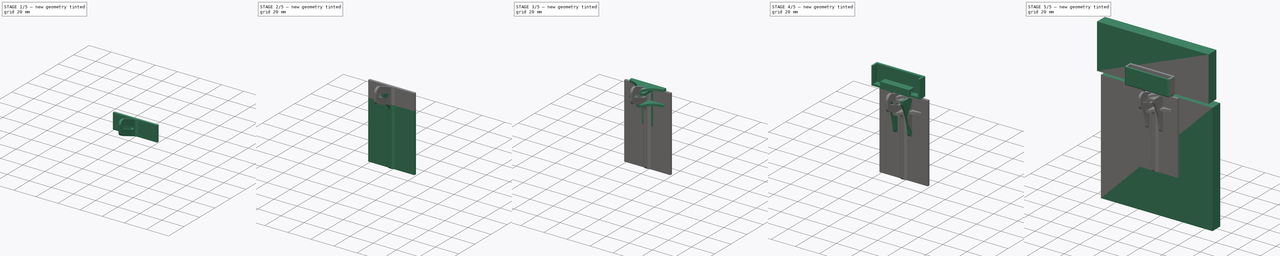
[diagram: build sequence overview — one tinted view per stage of 5, left to right]
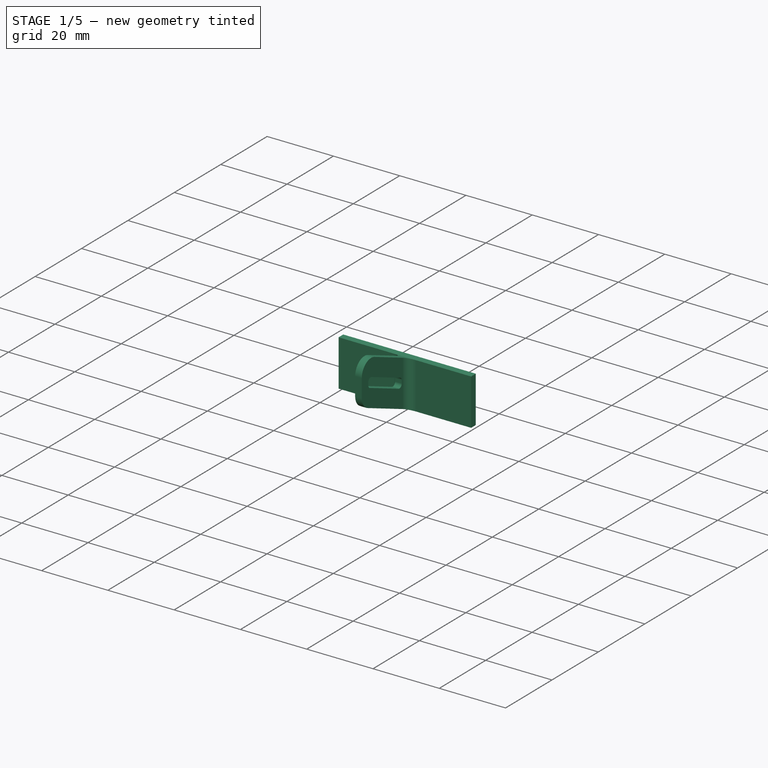
[diagram: stage 1 of 5 — iso view after this stage's code; geometry added in this stage tinted green]
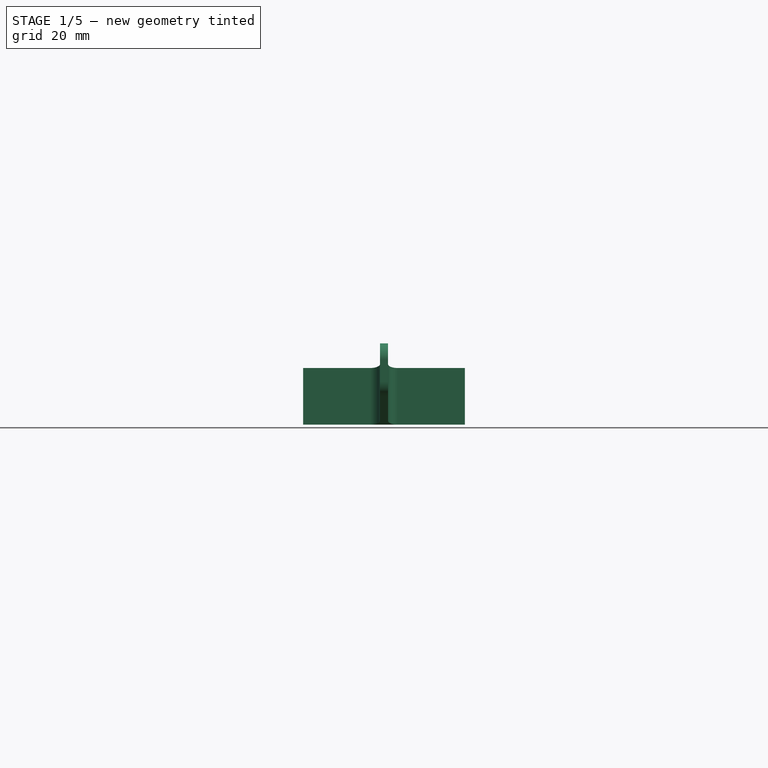
[diagram: stage 1 of 5 — front view after this stage's code; geometry added in this stage tinted green]
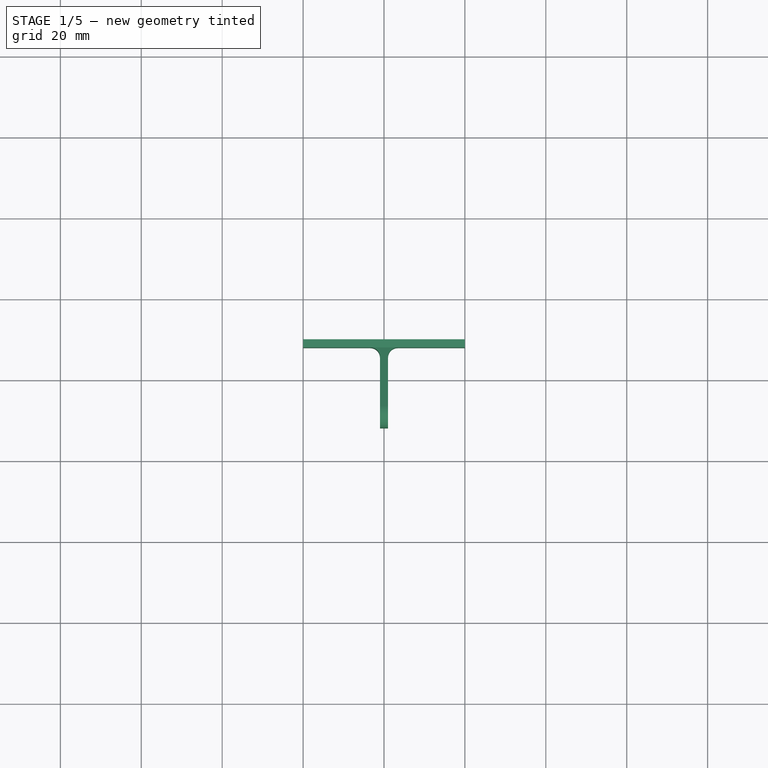
[diagram: stage 1 of 5 — top view after this stage's code; geometry added in this stage tinted green]
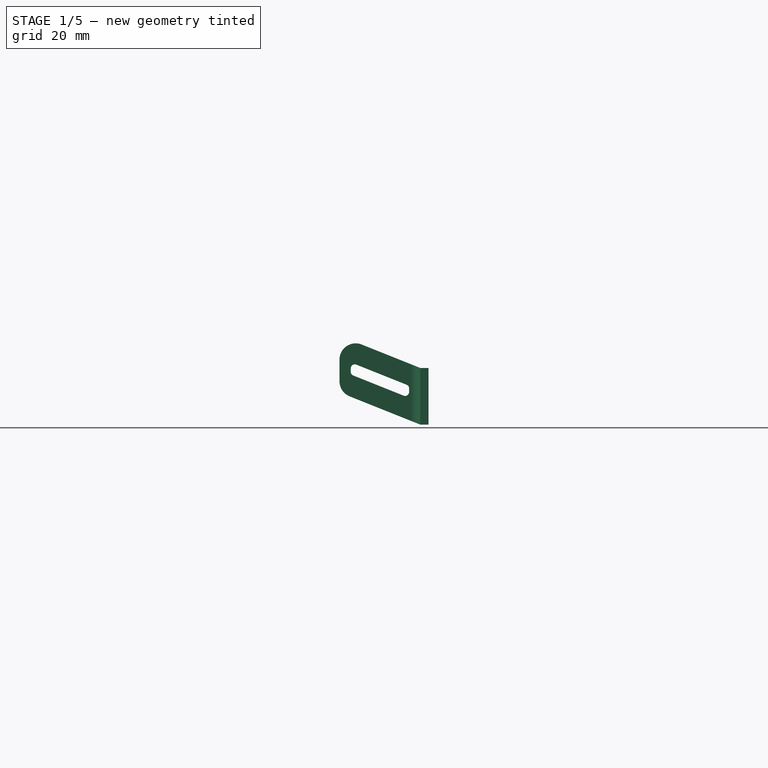
[diagram: stage 1 of 5 — right view after this stage's code; geometry added in this stage tinted green]
FCSTD DOCUMENT  (FreeCAD 2024.123R14555 (Git shallow))
Label: reed_switch
License: All rights reserved
LicenseURL: https://en.wikipedia.org/wiki/All_rights_reserved
objects: Sketcher::SketchObject×23, PartDesign::Pad×19, PartDesign::Fillet×7, Part::SubShapeBinder×5, PartDesign::Body×5, PartDesign::Pocket×4, PartDesign::Mirrored×2, PartDesign::Plane×1
note: 153 computed .brp shape members not serialized (recipe doc carries the construction recipe); baked Part::Feature solids carry a one-line shape summary decoded from their .brp

FEATURE [PartDesign::Body] Body003  label="magnet-holder-v2"
  AutoGroupSolids = false
  ClaimAllChildren = false
  ExportMode = 0
  Group = -> [Import003,Sketch013,Pad011,Sketch014,Pad012,Sketch015,Pocket002,Sketch016,Pad013,DatumPlane,Mirrored001]
  InvalidShape = false
  Origin = -> Origin003
  Tip = -> Mirrored001
  TreeRank = 72
  ValidateShape = false
  _ExportChildren = -> [Import003,Pad011,Pad012,Pocket002,Pad013,DatumPlane,Mirrored001]
  _GroupVersion = 1
FEATURE [Part::SubShapeBinder] Import004  label="Import004(Pad002)"
  BindCopyOnChange = 0
  BindMode = 0
  ClaimChildren = false
  Context = -> Body004 [Import004.]
  EdgeTolerance = 1e-06
  FillStyle = 0
  Fuse = false
  InvalidShape = false
  MakeFace = false
  MergeEdges = true
  OffsetFill = false
  OffsetIntersection = false
  OffsetJoinType = 0
  OffsetOpenResult = false
  Outline = false
  PartialLoad = false
  Relative = true
  SplitEdges = false
  Support = -> [Body[Pad002.]]
  TightBound = false
  TreeRank = 94
  ValidateShape = false
  _Version = 8
FEATURE [Sketcher::SketchObject] Sketch017
  ArcFitTolerance = 1e-06
  AttachmentSupport = -> [Import004]
  ExternalBSplineMaxDegree = 5
  ExternalBSplineTolerance = 0.0001
  FullyConstrained = true
  InternalTolerance = 1e-06
  InvalidShape = false
  MakeInternals = false
  MapMode = 5
  Placement = pos=(0,-10,0) rot=(1,0,0;1.5708rad)
  Support = -> [Import004]
  TreeRank = 95
  ValidateShape = false
  sketch-geometry (4):
    g0: LineSegment StartX=-20 StartY=0 StartZ=0 EndX=20 EndY=0 EndZ=0
    g1: LineSegment StartX=20 StartY=0 StartZ=0 EndX=20 EndY=-14 EndZ=0
    g2: LineSegment StartX=20 StartY=-14 StartZ=0 EndX=-20 EndY=-14 EndZ=0
    g3: LineSegment StartX=-20 StartY=-14 StartZ=0 EndX=-20 EndY=0 EndZ=0
  constraints (11):
    c: Coincident(g0,g1)
    c: Coincident(g1,g2)
    c: Coincident(g2,g3)
    c: Coincident(g3,g0)
    c: Horizontal(g0)
    c: Vertical(g1)
    c: Vertical(g3)
    c: PointOnObject(g0,g-1)
    c: DistanceY(g1,g1) = 14
    c: DistanceX(g0,g0) = 40
    c: Symmetric(g2,g1,g-2)
FEATURE [PartDesign::Pad] Pad014
  AddSubType = 0
  AlongSketchNormal = false
  AutoTaperInnerAngle = true
  CheckUpToFaceLimits = true
  ClaimChildren = false
  Direction = (0,-1,2e-16)
  Fit = 0
  FitJoin = 0
  InnerFit = 0
  InnerFitJoin = 0
  InvalidShape = false
  Length = 2
  Length2 = 10
  Linearize = true
  NewSolid = false
  Profile = -> Sketch017
  ReferenceAxis = -> Sketch017 [N_Axis]
  Suppress = false
  TaperInnerAngle = 0
  TaperInnerAngleRev = 0
  TreeRank = 96
  Type = 0
  ValidateShape = true
  _ProfileBasedVersion = 1
FEATURE [Sketcher::SketchObject] Sketch018
  ArcFitTolerance = 1e-06
  AttachmentSupport = -> [YZ_Plane004]
  ExternalBSplineMaxDegree = 5
  ExternalBSplineTolerance = 0.0001
  ExternalGeometry = -> [Pad014]
  FullyConstrained = true
  InternalTolerance = 1e-06
  InvalidShape = false
  MakeInternals = false
  MapMode = 5
  Placement = pos=(0,0,0) rot=(0.57735,0.57735,0.57735;2.0944rad)
  Support = -> [YZ_Plane004]
  TreeRank = 97
  ValidateShape = false
  sketch-geometry (4):
    g0: LineSegment StartX=-12 StartY=-8.4e-15 StartZ=0 EndX=-32 EndY=8 EndZ=0
    g1: LineSegment StartX=-12 StartY=-8.4e-15 StartZ=0 EndX=-12 EndY=-14 EndZ=0
    g2: LineSegment StartX=-12 StartY=-14 StartZ=0 EndX=-32 EndY=-6 EndZ=0
    g3: LineSegment StartX=-32 StartY=-6 StartZ=0 EndX=-32 EndY=8 EndZ=0
  constraints (10):
    c: Coincident(g0,g-3)
    c: DistanceX(g0,g0) = 20
    c: DistanceY(g0,g0) = 8
    c: Coincident(g1,g0)
    c: Coincident(g1,g-3)
    c: Coincident(g2,g1)
    c: Coincident(g3,g2)
    c: Coincident(g3,g0)
    c: Vertical(g3)
    c: Parallel(g0,g2)
FEATURE [PartDesign::Pad] Pad015
  AddSubType = 0
  AlongSketchNormal = false
  AutoTaperInnerAngle = true
  BaseFeature = -> Pad014
  CheckUpToFaceLimits = true
  ClaimChildren = false
  Direction = (1,-2e-16,3e-16)
  Fit = 0
  FitJoin = 0
  InnerFit = 0
  InnerFitJoin = 0
  InvalidShape = false
  Length = 2
  Length2 = 10
  Linearize = true
  Midplane = true
  NewSolid = false
  Profile = -> Sketch018
  ReferenceAxis = -> Sketch018 [N_Axis]
  Suppress = false
  TaperInnerAngle = 0
  TaperInnerAngleRev = 0
  TreeRank = 98
  Type = 0
  ValidateShape = true
  _ProfileBasedVersion = 1
FEATURE [Sketcher::SketchObject] Sketch019
  ArcFitTolerance = 1e-06
  AttachmentSupport = -> [Pad015]
  ExternalBSplineMaxDegree = 5
  ExternalBSplineTolerance = 0.0001
  ExternalGeometry = -> [Pad015]
  FullyConstrained = true
  InternalTolerance = 1e-06
  InvalidShape = false
  MakeInternals = false
  MapMode = 5
  Placement = pos=(-1,2e-16,-2e-16) rot=(-0.57735,0.57735,0.57735;4.18879rad)
  Support = -> [Pad015]
  TreeRank = 99
  ValidateShape = false
  sketch-geometry (6):
    g0: LineSegment StartX=14.7854 StartY=-4.38583 StartZ=0 EndX=14.7854 EndY=-7.38583 EndZ=0
    g1: LineSegment StartX=14.7854 StartY=-7.38583 StartZ=0 EndX=29.2146 EndY=-1.61417 EndZ=0
    g2: LineSegment StartX=29.2146 StartY=-1.61417 StartZ=0 EndX=29.2146 EndY=1.38583 EndZ=0
    g3: LineSegment StartX=14.7854 StartY=-4.38583 StartZ=0 EndX=29.2146 EndY=1.38583 EndZ=0
    g4: LineSegment [constr] StartX=32 StartY=1 StartZ=0 EndX=29.2146 EndY=-0.114172 EndZ=0
    g5: LineSegment [constr] StartX=14.7854 StartY=-5.88583 StartZ=0 EndX=12 EndY=-7 EndZ=0
  constraints (16):
    c: Vertical(g0)
    c: Coincident(g1,g0)
    c: Coincident(g2,g1)
    c: Vertical(g2)
    c: Coincident(g3,g0)
    c: Coincident(g3,g2)
    c: Parallel(g3,g1)
    c: DistanceY(g2,g2) = 3
    c: Symmetric(g-4,g-3,g4)
    c: Symmetric(g1,g2,g4)
    c: Parallel(g4,g1)
    c: Parallel(g3,g-3)
    c: Symmetric(g-4,g-3,g5)
    c: Symmetric(g0,g0,g5)
    c: Equal(g5,g4)
    c: Distance(g4) = 3
FEATURE [PartDesign::Pocket] Pocket003
  AddSubType = 1
  AlongSketchNormal = false
  AutoTaperInnerAngle = true
  BaseFeature = -> Pad015
  CheckUpToFaceLimits = true
  ClaimChildren = false
  Direction = (1,-2e-16,2e-16)
  Fit = 0
  FitJoin = 0
  InnerFit = 0
  InnerFitJoin = 0
  InvalidShape = false
  Length = 5
  Length2 = 10
  Linearize = true
  NewSolid = false
  Profile = -> Sketch019
  ReferenceAxis = -> Sketch019 [N_Axis]
  Suppress = false
  TaperInnerAngle = 0
  TaperInnerAngleRev = 0
  TreeRank = 100
  Type = 0
  ValidateShape = true
  _ProfileBasedVersion = 1
  _Version = 1
FEATURE [PartDesign::Fillet] Fillet002
  AddSubType = 0
  Base = -> Pocket003 [Edge19,Edge15]
  BaseFeature = -> Pocket003
  InvalidShape = false
  NewSolid = false
  Radius = 2.4
  SupportTransform = false
  Suppress = false
  TreeRank = 101
  UseAllEdges = false
  ValidateShape = true
FEATURE [PartDesign::Fillet] Fillet003
  AddSubType = 0
  Base = -> Fillet002 [Edge14,Edge36]
  BaseFeature = -> Fillet002
  InvalidShape = false
  NewSolid = false
  Radius = 4
  SupportTransform = false
  Suppress = false
  TreeRank = 102
  UseAllEdges = false
  ValidateShape = true
FEATURE [PartDesign::Fillet] Fillet004
  AddSubType = 0
  Base = -> Fillet003 [Edge42,Edge44,Edge43,Edge45]
  BaseFeature = -> Fillet003
  InvalidShape = false
  NewSolid = false
  Radius = 1
  SupportTransform = false
  Suppress = false
  TreeRank = 103
  UseAllEdges = false
  ValidateShape = true
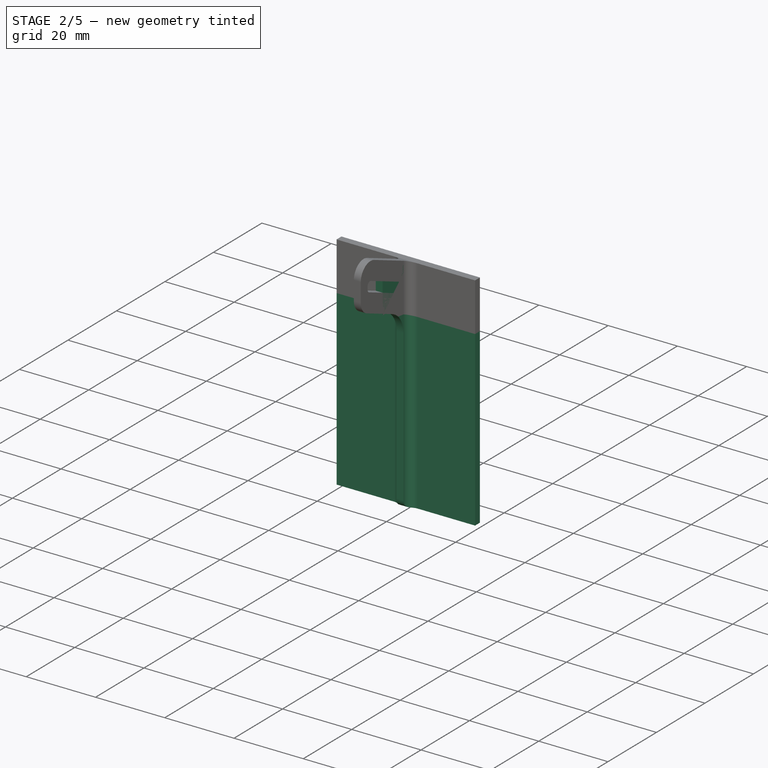
[diagram: stage 2 of 5 — iso view after this stage's code; geometry added in this stage tinted green]
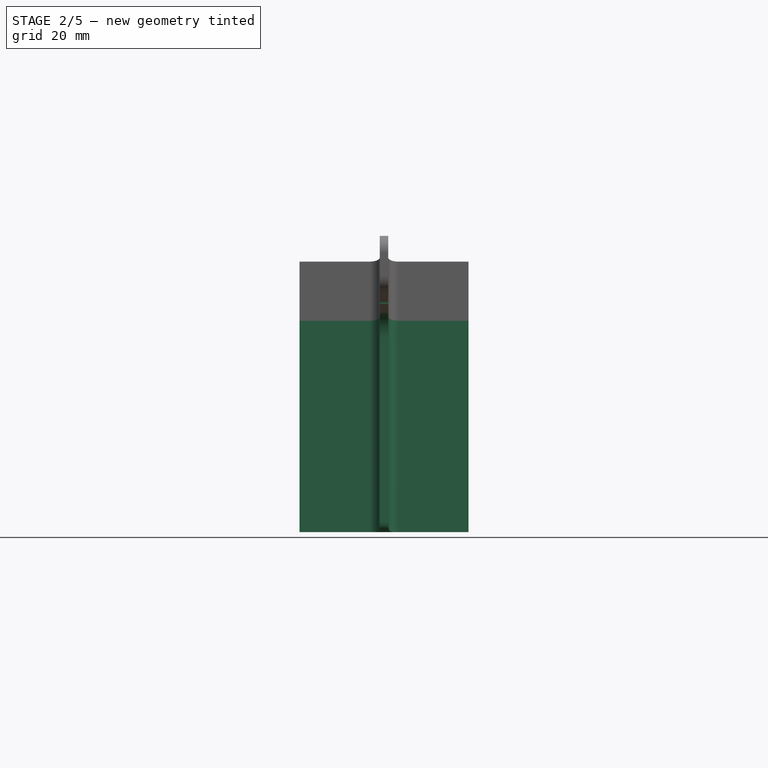
[diagram: stage 2 of 5 — front view after this stage's code; geometry added in this stage tinted green]
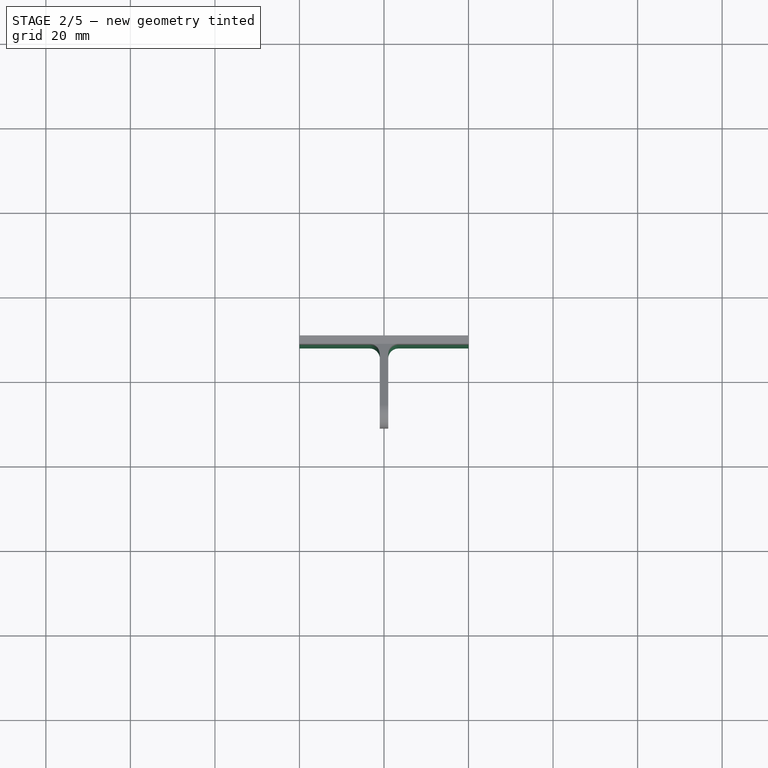
[diagram: stage 2 of 5 — top view after this stage's code; geometry added in this stage tinted green]
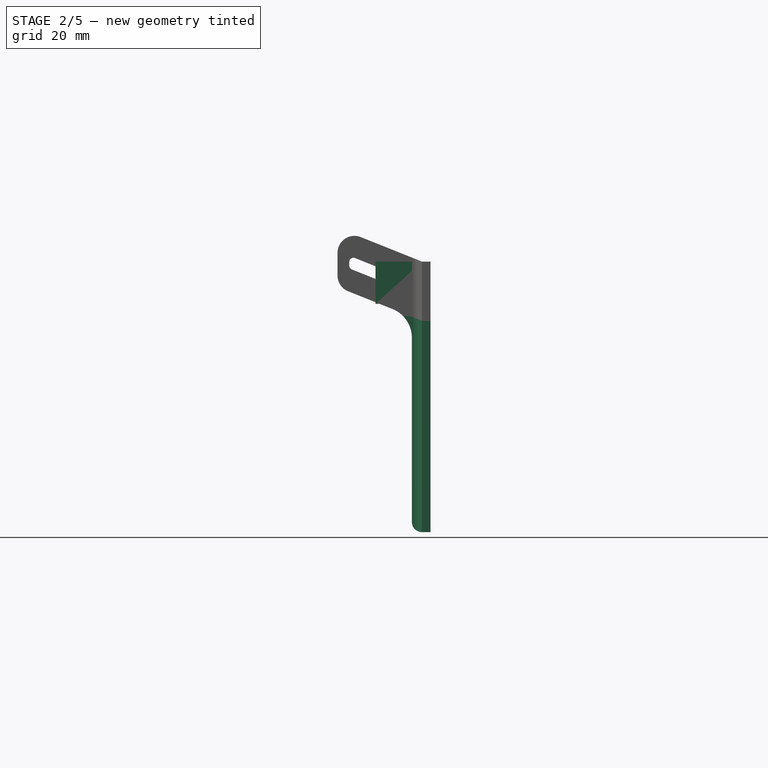
[diagram: stage 2 of 5 — right view after this stage's code; geometry added in this stage tinted green]
FEATURE [PartDesign::Body] Body002  label="magnet-holder"
  AutoGroupSolids = false
  ClaimAllChildren = false
  ExportMode = 0
  Group = -> [Import002,Sketch009,Pad008,Sketch010,Pad009,Sketch011,Pocket001,Sketch012,Pad010,Mirrored]
  InvalidShape = false
  Origin = -> Origin002
  Tip = -> Mirrored
  TreeRank = 52
  ValidateShape = false
  _ExportChildren = -> [Import002,Pad008,Pad009,Pocket001,Pad010,Mirrored]
  _GroupVersion = 1
FEATURE [Part::SubShapeBinder] Import003  label="Import003(Pad002)"
  BindCopyOnChange = 0
  BindMode = 0
  ClaimChildren = false
  Context = -> Body003 [Import003.]
  EdgeTolerance = 1e-06
  FillStyle = 0
  Fuse = false
  InvalidShape = false
  MakeFace = false
  MergeEdges = true
  OffsetFill = false
  OffsetIntersection = false
  OffsetJoinType = 0
  OffsetOpenResult = false
  Outline = false
  PartialLoad = false
  Relative = true
  SplitEdges = false
  Support = -> [Body[Pad002.]]
  TightBound = false
  TreeRank = 73
  ValidateShape = false
  _Version = 8
FEATURE [Sketcher::SketchObject] Sketch013
  ArcFitTolerance = 1e-06
  AttachmentSupport = -> [Import003]
  ExternalBSplineMaxDegree = 5
  ExternalBSplineTolerance = 0.0001
  FullyConstrained = true
  InternalTolerance = 1e-06
  InvalidShape = false
  MakeInternals = false
  MapMode = 5
  Placement = pos=(0,-10,0) rot=(1,0,0;1.5708rad)
  Support = -> [Import003]
  TreeRank = 74
  ValidateShape = false
  sketch-geometry (4):
    g0: LineSegment StartX=-15 StartY=0 StartZ=0 EndX=15 EndY=0 EndZ=0
    g1: LineSegment StartX=15 StartY=0 StartZ=0 EndX=15 EndY=-10 EndZ=0
    g2: LineSegment StartX=15 StartY=-10 StartZ=0 EndX=-15 EndY=-10 EndZ=0
    g3: LineSegment StartX=-15 StartY=-10 StartZ=0 EndX=-15 EndY=0 EndZ=0
  constraints (11):
    c: Coincident(g0,g1)
    c: Coincident(g1,g2)
    c: Coincident(g2,g3)
    c: Coincident(g3,g0)
    c: Horizontal(g0)
    c: Vertical(g1)
    c: Vertical(g3)
    c: PointOnObject(g0,g-1)
    c: DistanceY(g1,g1) = 10
    c: DistanceX(g0,g0) = 30
    c: Symmetric(g2,g1,g-2)
FEATURE [PartDesign::Pad] Pad011
  AddSubType = 0
  AlongSketchNormal = false
  AutoTaperInnerAngle = true
  CheckUpToFaceLimits = true
  ClaimChildren = false
  Direction = (0,-1,2e-16)
  Fit = 0
  FitJoin = 0
  InnerFit = 0
  InnerFitJoin = 0
  InvalidShape = false
  Length = 2
  Length2 = 10
  Linearize = true
  NewSolid = false
  Profile = -> Sketch013
  ReferenceAxis = -> Sketch013 [N_Axis]
  Suppress = false
  TaperInnerAngle = 0
  TaperInnerAngleRev = 0
  TreeRank = 75
  Type = 0
  ValidateShape = true
  _ProfileBasedVersion = 1
FEATURE [Sketcher::SketchObject] Sketch014
  ArcFitTolerance = 1e-06
  AttachmentSupport = -> [Pad011]
  ExternalBSplineMaxDegree = 5
  ExternalBSplineTolerance = 0.0001
  ExternalGeometry = -> [Pad011]
  FullyConstrained = true
  InternalTolerance = 1e-06
  InvalidShape = false
  MakeInternals = false
  MapMode = 5
  Placement = pos=(0,-12,0) rot=(1,0,0;1.5708rad)
  Support = -> [Pad011]
  TreeRank = 76
  ValidateShape = false
  sketch-geometry (4):
    g0: LineSegment StartX=-1 StartY=0 StartZ=0 EndX=1 EndY=0 EndZ=0
    g1: LineSegment StartX=1 StartY=0 StartZ=0 EndX=1 EndY=-10 EndZ=0
    g2: LineSegment StartX=1 StartY=-10 StartZ=0 EndX=-1 EndY=-10 EndZ=0
    g3: LineSegment StartX=-1 StartY=-10 StartZ=0 EndX=-1 EndY=0 EndZ=0
  constraints (11):
    c: Coincident(g0,g1)
    c: Coincident(g1,g2)
    c: Coincident(g2,g3)
    c: Coincident(g3,g0)
    c: Horizontal(g0)
    c: Vertical(g1)
    c: Vertical(g3)
    c: PointOnObject(g0,g-1)
    c: PointOnObject(g1,g-3)
    c: DistanceX(g0,g0) = 2
    c: Symmetric(g2,g1,g-2)
FEATURE [PartDesign::Pad] Pad012
  AddSubType = 0
  AlongSketchNormal = false
  AutoTaperInnerAngle = true
  BaseFeature = -> Pad011
  CheckUpToFaceLimits = true
  ClaimChildren = false
  Direction = (0,-1,2e-16)
  Fit = 0
  FitJoin = 0
  InnerFit = 0
  InnerFitJoin = 0
  InvalidShape = false
  Length = 11
  Length2 = 10
  Linearize = true
  NewSolid = false
  Profile = -> Sketch014
  ReferenceAxis = -> Sketch014 [N_Axis]
  Suppress = false
  TaperInnerAngle = 0
  TaperInnerAngleRev = 0
  TreeRank = 77
  Type = 0
  ValidateShape = true
  _ProfileBasedVersion = 1
FEATURE [Sketcher::SketchObject] Sketch020
  ArcFitTolerance = 1e-06
  AttachmentOffset = pos=(0,0,-2) rot=(0,0,1;0rad)
  AttachmentSupport = -> [Fillet004]
  ExternalBSplineMaxDegree = 5
  ExternalBSplineTolerance = 0.0001
  ExternalGeometry = -> [Fillet004]
  FullyConstrained = true
  InternalTolerance = 1e-06
  InvalidShape = false
  MakeInternals = false
  MapMode = 5
  Placement = pos=(0,-10,2.6e-15) rot=(1,0,0;1.5708rad)
  Support = -> [Fillet004]
  TreeRank = 104
  ValidateShape = false
  sketch-geometry (4):
    g0: LineSegment StartX=-20 StartY=-14 StartZ=0 EndX=20 EndY=-14 EndZ=0
    g1: LineSegment StartX=20 StartY=-14 StartZ=0 EndX=20 EndY=-64 EndZ=0
    g2: LineSegment StartX=20 StartY=-64 StartZ=0 EndX=-20 EndY=-64 EndZ=0
    g3: LineSegment StartX=-20 StartY=-64 StartZ=0 EndX=-20 EndY=-14 EndZ=0
  constraints (11):
    c: Coincident(g0,g1)
    c: Coincident(g1,g2)
    c: Coincident(g2,g3)
    c: Coincident(g3,g0)
    c: Horizontal(g0)
    c: Horizontal(g2)
    c: Vertical(g1)
    c: Vertical(g3)
    c: Coincident(g0,g-4)
    c: PointOnObject(g-3,g1)
    c: DistanceY(g1,g1) = 50
FEATURE [PartDesign::Pad] Pad016
  AddSubType = 0
  AlongSketchNormal = false
  AutoTaperInnerAngle = true
  BaseFeature = -> Fillet004
  CheckUpToFaceLimits = true
  ClaimChildren = false
  Direction = (0,-1,2e-16)
  Fit = 0
  FitJoin = 0
  InnerFit = 0
  InnerFitJoin = 0
  InvalidShape = false
  Length = 2
  Length2 = 10
  Linearize = true
  NewSolid = false
  Profile = -> Sketch020
  ReferenceAxis = -> Sketch020 [N_Axis]
  Suppress = false
  TaperInnerAngle = 0
  TaperInnerAngleRev = 0
  TreeRank = 105
  Type = 0
  ValidateShape = true
  _ProfileBasedVersion = 1
FEATURE [Sketcher::SketchObject] Sketch021
  ArcFitTolerance = 1e-06
  AttachmentSupport = -> [YZ_Plane004]
  ExternalBSplineMaxDegree = 5
  ExternalBSplineTolerance = 0.0001
  ExternalGeometry = -> [Pad016]
  FullyConstrained = true
  InternalTolerance = 1e-06
  InvalidShape = false
  MakeInternals = false
  MapMode = 5
  Placement = pos=(0,0,0) rot=(0.57735,0.57735,0.57735;2.0944rad)
  Support = -> [YZ_Plane004]
  TreeRank = 106
  ValidateShape = false
  sketch-geometry (4):
    g0: LineSegment StartX=-14.4 StartY=-13.04 StartZ=0 EndX=-12 EndY=-13.04 EndZ=0
    g1: LineSegment StartX=-12 StartY=-13.04 StartZ=0 EndX=-12 EndY=-64 EndZ=0
    g2: LineSegment StartX=-12 StartY=-64 StartZ=0 EndX=-14.4 EndY=-64 EndZ=0
    g3: LineSegment StartX=-14.4 StartY=-64 StartZ=0 EndX=-14.4 EndY=-13.04 EndZ=0
  constraints (10):
    c: Coincident(g0,g1)
    c: Coincident(g1,g2)
    c: Coincident(g2,g3)
    c: Coincident(g3,g0)
    c: Horizontal(g0)
    c: Horizontal(g2)
    c: Vertical(g1)
    c: Vertical(g3)
    c: Coincident(g0,g-3)
    c: Coincident(g1,g-4)
FEATURE [PartDesign::Pad] Pad017
  AddSubType = 0
  AlongSketchNormal = false
  AutoTaperInnerAngle = true
  BaseFeature = -> Pad016
  CheckUpToFaceLimits = true
  ClaimChildren = false
  Direction = (1,-2e-16,3e-16)
  Fit = 0
  FitJoin = 0
  InnerFit = 0
  InnerFitJoin = 0
  InvalidShape = false
  Length = 2
  Length2 = 10
  Linearize = true
  Midplane = true
  NewSolid = false
  Profile = -> Sketch021
  ReferenceAxis = -> Sketch021 [N_Axis]
  Suppress = false
  TaperInnerAngle = 0
  TaperInnerAngleRev = 0
  TreeRank = 107
  Type = 0
  ValidateShape = true
  _ProfileBasedVersion = 1
FEATURE [PartDesign::Fillet] Fillet005
  AddSubType = 0
  Base = -> Pad017 [Edge74,Edge78]
  BaseFeature = -> Pad017
  InvalidShape = false
  NewSolid = false
  Radius = 2.39
  SupportTransform = false
  Suppress = false
  TreeRank = 108
  UseAllEdges = false
  ValidateShape = true
FEATURE [PartDesign::Fillet] Fillet006
  AddSubType = 0
  Base = -> Fillet005 [Edge16]
  BaseFeature = -> Fillet005
  InvalidShape = false
  NewSolid = false
  Radius = 2.39
  SupportTransform = false
  Suppress = false
  TreeRank = 109
  UseAllEdges = false
  ValidateShape = true
FEATURE [Sketcher::SketchObject] Sketch022
  ArcFitTolerance = 1e-06
  AttachmentSupport = -> [YZ_Plane004]
  ExternalBSplineMaxDegree = 5
  ExternalBSplineTolerance = 0.0001
  ExternalGeometry = -> [Fillet006]
  FullyConstrained = true
  InternalTolerance = 1e-06
  InvalidShape = false
  MakeInternals = false
  MapMode = 5
  Placement = pos=(0,0,0) rot=(0.57735,0.57735,0.57735;2.0944rad)
  Support = -> [YZ_Plane004]
  TreeRank = 110
  ValidateShape = false
  sketch-geometry (3):
    g0: LineSegment StartX=-19.0424 StartY=-11.183 StartZ=0 EndX=-14.4 EndY=-13.04 EndZ=0
    g1: LineSegment StartX=-14.4 StartY=-13.04 StartZ=0 EndX=-14.4 EndY=-18.04 EndZ=0
    g2: ArcOfCircle CenterX=-21.7852 CenterY=-18.04 CenterZ=0 NormalX=0 NormalY=0 NormalZ=1 AngleXU=0 Radius=7.38516 StartAngle=2.821e-13 EndAngle=1.19029
  constraints (7):
    c: PointOnObject(g0,g-3)
    c: Coincident(g0,g-4)
    c: Coincident(g1,g0)
    c: PointOnObject(g1,g-4)
    c: Tangent(g2,g0) = 1.5708
    c: Tangent(g2,g1) = 1.5708
    c: Distance(g0) = 5
FEATURE [PartDesign::Pad] Pad018
  AddSubType = 0
  AlongSketchNormal = false
  AutoTaperInnerAngle = true
  BaseFeature = -> Fillet006
  CheckUpToFaceLimits = true
  ClaimChildren = false
  Direction = (1,-2e-16,3e-16)
  Fit = 0
  FitJoin = 0
  FixShape = 1
  InnerFit = 0
  InnerFitJoin = 0
  InvalidShape = false
  Length = 2
  Length2 = 10
  Linearize = true
  Midplane = true
  NewSolid = false
  Profile = -> Sketch022
  ReferenceAxis = -> Sketch022 [N_Axis]
  Suppress = false
  TaperInnerAngle = 0
  TaperInnerAngleRev = 0
  TreeRank = 111
  Type = 0
  ValidateShape = true
  _ProfileBasedVersion = 1
FEATURE [PartDesign::Body] Body004  label="magnet-holder-v3"
  AutoGroupSolids = false
  ClaimAllChildren = false
  ExportMode = 0
  Group = -> [Import004,Sketch017,Pad014,Sketch018,Pad015,Sketch019,Pocket003,Fillet002,Fillet003,Fillet004,Sketch020,Pad016,Sketch021,Pad017,Fillet005,Fillet006,Sketch022,Pad018]
  InvalidShape = false
  Origin = -> Origin004
  Tip = -> Pad018
  TreeRank = 93
  ValidateShape = false
  _ExportChildren = -> [Import004,Pad014,Pad015,Pocket003,Fillet002,Fillet003,Fillet004,Pad016,Pad017,Fillet005,Fillet006,Pad018]
  _GroupVersion = 1
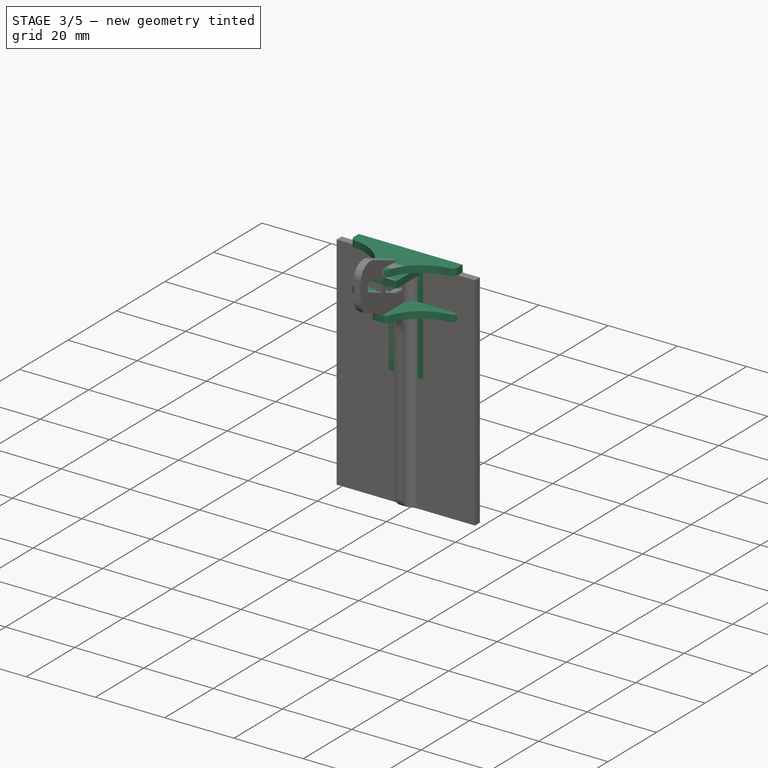
[diagram: stage 3 of 5 — iso view after this stage's code; geometry added in this stage tinted green]
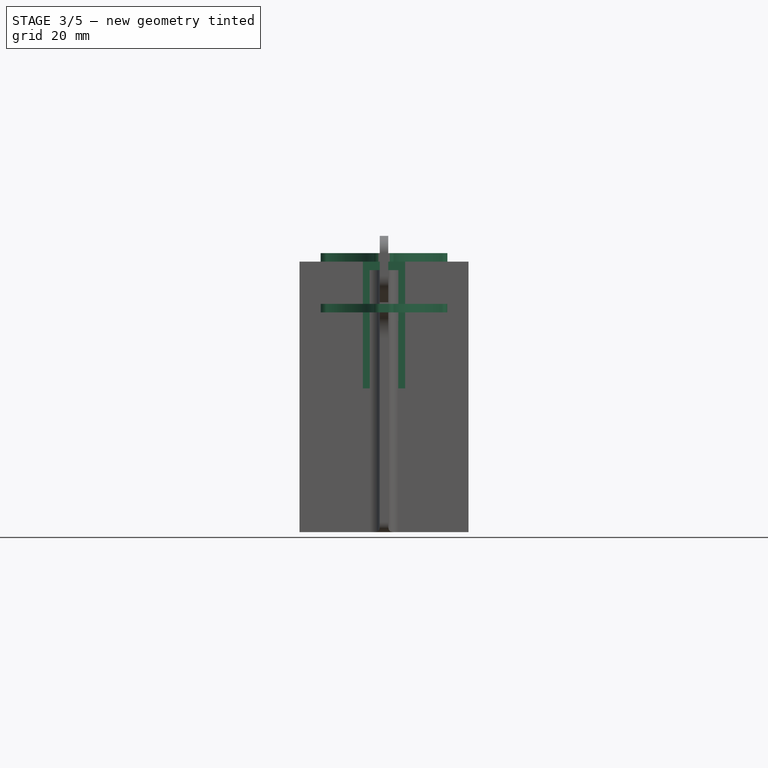
[diagram: stage 3 of 5 — front view after this stage's code; geometry added in this stage tinted green]
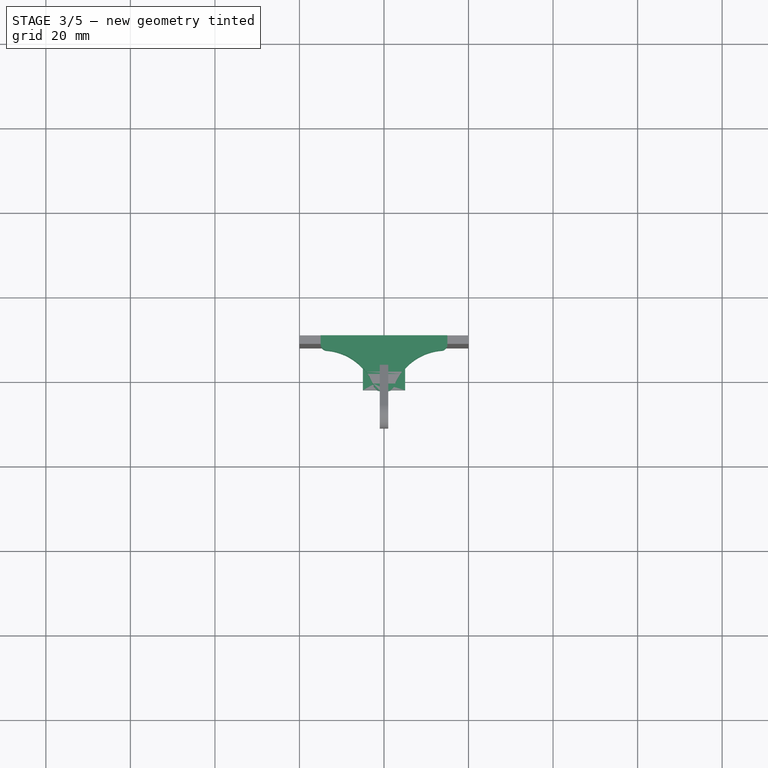
[diagram: stage 3 of 5 — top view after this stage's code; geometry added in this stage tinted green]
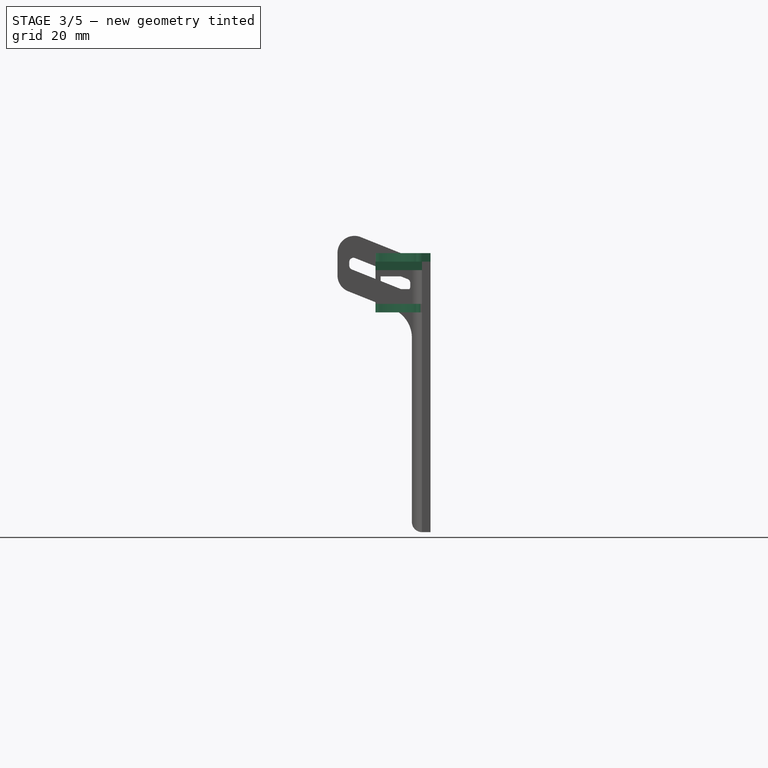
[diagram: stage 3 of 5 — right view after this stage's code; geometry added in this stage tinted green]
FEATURE [PartDesign::Body] Body001  label="reed-switch-holder"
  AutoGroupSolids = false
  ClaimAllChildren = false
  ExportMode = 0
  Group = -> [Import,Import001,Sketch003,Pad003,Sketch004,Pad004,Sketch005,Pad005,Sketch006,Pocket,Sketch007,Pad006,Sketch008,Pad007,Fillet,Fillet001]
  InvalidShape = false
  Origin = -> Origin001
  Tip = -> Fillet001
  TreeRank = 24
  ValidateShape = false
  _ExportChildren = -> [Import,Import001,Pad003,Pad004,Pad005,Pocket,Pad006,Pad007,Fillet,Fillet001]
  _GroupVersion = 1
FEATURE [Part::SubShapeBinder] Import002  label="Import002(Pad002)"
  BindCopyOnChange = 0
  BindMode = 0
  ClaimChildren = false
  Context = -> Body002 [Import002.]
  EdgeTolerance = 1e-06
  FillStyle = 0
  Fuse = false
  InvalidShape = false
  MakeFace = false
  MergeEdges = true
  OffsetFill = false
  OffsetIntersection = false
  OffsetJoinType = 0
  OffsetOpenResult = false
  Outline = false
  PartialLoad = false
  Relative = true
  SplitEdges = false
  Support = -> [Body[Pad002.]]
  TightBound = false
  TreeRank = 53
  ValidateShape = false
  _Version = 8
FEATURE [Sketcher::SketchObject] Sketch009
  ArcFitTolerance = 1e-06
  AttachmentSupport = -> [Import002]
  ExternalBSplineMaxDegree = 5
  ExternalBSplineTolerance = 0.0001
  FullyConstrained = true
  InternalTolerance = 1e-06
  InvalidShape = false
  MakeInternals = false
  MapMode = 5
  Placement = pos=(0,-10,0) rot=(1,0,0;1.5708rad)
  Support = -> [Import002]
  TreeRank = 54
  ValidateShape = false
  sketch-geometry (4):
    g0: LineSegment StartX=-5 StartY=0 StartZ=0 EndX=5 EndY=0 EndZ=0
    g1: LineSegment StartX=5 StartY=0 StartZ=0 EndX=5 EndY=-30 EndZ=0
    g2: LineSegment StartX=5 StartY=-30 StartZ=0 EndX=-5 EndY=-30 EndZ=0
    g3: LineSegment StartX=-5 StartY=-30 StartZ=0 EndX=-5 EndY=0 EndZ=0
  constraints (11):
    c: Coincident(g0,g1)
    c: Coincident(g1,g2)
    c: Coincident(g2,g3)
    c: Coincident(g3,g0)
    c: Horizontal(g0)
    c: Vertical(g1)
    c: Vertical(g3)
    c: PointOnObject(g0,g-1)
    c: DistanceX(g2,g2) = 10
    c: Symmetric(g2,g1,g-2)
    c: DistanceY(g1,g1) = 30
FEATURE [PartDesign::Pad] Pad008
  AddSubType = 0
  AlongSketchNormal = false
  AutoTaperInnerAngle = true
  CheckUpToFaceLimits = true
  ClaimChildren = false
  Direction = (0,-1,2e-16)
  Fit = 0
  FitJoin = 0
  InnerFit = 0
  InnerFitJoin = 0
  InvalidShape = false
  Length = 2
  Length2 = 10
  Linearize = true
  NewSolid = false
  Profile = -> Sketch009
  ReferenceAxis = -> Sketch009 [N_Axis]
  Suppress = false
  TaperInnerAngle = 0
  TaperInnerAngleRev = 0
  TreeRank = 55
  Type = 0
  ValidateShape = true
  _ProfileBasedVersion = 1
FEATURE [Sketcher::SketchObject] Sketch010
  ArcFitTolerance = 1e-06
  AttachmentSupport = -> [Pad008]
  ExternalBSplineMaxDegree = 5
  ExternalBSplineTolerance = 0.0001
  ExternalGeometry = -> [Pad008]
  FullyConstrained = true
  InternalTolerance = 1e-06
  InvalidShape = false
  MakeInternals = false
  MapMode = 5
  Placement = pos=(0,-12,2.8e-15) rot=(1,0,0;1.5708rad)
  Support = -> [Pad008]
  TreeRank = 56
  ValidateShape = false
  sketch-geometry (4):
    g0: LineSegment StartX=5 StartY=-2 StartZ=0 EndX=-5 EndY=-2 EndZ=0
    g1: LineSegment StartX=-5 StartY=-2 StartZ=0 EndX=-5 EndY=-2.4e-15 EndZ=0
    g2: LineSegment StartX=-5 StartY=-2.4e-15 StartZ=0 EndX=5 EndY=-2.4e-15 EndZ=0
    g3: LineSegment StartX=5 StartY=-2.4e-15 StartZ=0 EndX=5 EndY=-2 EndZ=0
  constraints (11):
    c: Coincident(g0,g1)
    c: Coincident(g1,g2)
    c: Coincident(g2,g3)
    c: Coincident(g3,g0)
    c: Horizontal(g0)
    c: Horizontal(g2)
    c: Vertical(g1)
    c: Vertical(g3)
    c: PointOnObject(g0,g-4)
    c: Coincident(g1,g-3)
    c: DistanceY(g3,g3) = 2
FEATURE [PartDesign::Pad] Pad009
  AddSubType = 0
  AlongSketchNormal = false
  AutoTaperInnerAngle = true
  BaseFeature = -> Pad008
  CheckUpToFaceLimits = true
  ClaimChildren = false
  Direction = (0,-1,2e-16)
  Fit = 0
  FitJoin = 0
  InnerFit = 0
  InnerFitJoin = 0
  InvalidShape = false
  Length = 11
  Length2 = 10
  Linearize = true
  NewSolid = false
  Profile = -> Sketch010
  ReferenceAxis = -> Sketch010 [N_Axis]
  Suppress = false
  TaperInnerAngle = 0
  TaperInnerAngleRev = 0
  TreeRank = 57
  Type = 0
  ValidateShape = true
  _ProfileBasedVersion = 1
FEATURE [Sketcher::SketchObject] Sketch011
  ArcFitTolerance = 1e-06
  AttachmentSupport = -> [Pad009]
  ExternalBSplineMaxDegree = 5
  ExternalBSplineTolerance = 0.0001
  ExternalGeometry = -> [Pad009]
  FullyConstrained = true
  InternalTolerance = 1e-06
  InvalidShape = false
  MakeInternals = false
  MapMode = 5
  Placement = pos=(0,-4e-16,-2) rot=(1,0,0;3.14159rad)
  Support = -> [Pad009]
  TreeRank = 58
  ValidateShape = false
  sketch-geometry (4):
    g0: LineSegment StartX=-1.5 StartY=21 StartZ=0 EndX=1.5 EndY=21 EndZ=0
    g1: LineSegment StartX=1.5 StartY=21 StartZ=0 EndX=1.5 EndY=14 EndZ=0
    g2: LineSegment StartX=1.5 StartY=14 StartZ=0 EndX=-1.5 EndY=14 EndZ=0
    g3: LineSegment StartX=-1.5 StartY=14 StartZ=0 EndX=-1.5 EndY=21 EndZ=0
  constraints (11):
    c: Coincident(g0,g1)
    c: Coincident(g1,g2)
    c: Coincident(g2,g3)
    c: Coincident(g3,g0)
    c: Horizontal(g2)
    c: Vertical(g1)
    c: Vertical(g3)
    c: DistanceX(g0,g0) = 3
    c: Symmetric(g0,g0,g-2)
    c: DistanceY(g0,g-3) = 2
    c: DistanceY(g-4,g1) = 2
FEATURE [PartDesign::Pocket] Pocket001
  AddSubType = 1
  AlongSketchNormal = false
  AutoTaperInnerAngle = true
  BaseFeature = -> Pad009
  CheckUpToFaceLimits = true
  ClaimChildren = false
  Direction = (0,2e-16,1)
  Fit = 0
  FitJoin = 0
  InnerFit = 0
  InnerFitJoin = 0
  InvalidShape = false
  Length = 5
  Length2 = 10
  Linearize = true
  NewSolid = false
  Profile = -> Sketch011
  ReferenceAxis = -> Sketch011 [N_Axis]
  Suppress = false
  TaperInnerAngle = 0
  TaperInnerAngleRev = 0
  TreeRank = 59
  Type = 0
  ValidateShape = true
  _ProfileBasedVersion = 1
  _Version = 1
FEATURE [Sketcher::SketchObject] Sketch015
  ArcFitTolerance = 1e-06
  AttachmentSupport = -> [Pad012]
  ExternalBSplineMaxDegree = 5
  ExternalBSplineTolerance = 0.0001
  ExternalGeometry = -> [Pad012]
  FullyConstrained = true
  InternalTolerance = 1e-06
  InvalidShape = false
  MakeInternals = false
  MapMode = 5
  Placement = pos=(-1,0,0) rot=(0.57735,-0.57735,-0.57735;2.0944rad)
  Support = -> [Pad012]
  TreeRank = 78
  ValidateShape = false
  sketch-geometry (5):
    g0: LineSegment [constr] StartX=12 StartY=-5 StartZ=0 EndX=23 EndY=-5 EndZ=0
    g1: LineSegment StartX=13.2 StartY=-3.5 StartZ=0 EndX=21.8 EndY=-3.5 EndZ=0
    g2: LineSegment StartX=21.8 StartY=-3.5 StartZ=0 EndX=21.8 EndY=-6.5 EndZ=0
    g3: LineSegment StartX=21.8 StartY=-6.5 StartZ=0 EndX=13.2 EndY=-6.5 EndZ=0
    g4: LineSegment StartX=13.2 StartY=-6.5 StartZ=0 EndX=13.2 EndY=-3.5 EndZ=0
  constraints (14):
    c: PointOnObject(g0,g-3)
    c: Horizontal(g0)
    c: Symmetric(g-4,g-4,g0)
    c: Coincident(g1,g2)
    c: Coincident(g2,g3)
    c: Coincident(g3,g4)
    c: Coincident(g4,g1)
    c: Horizontal(g1)
    c: Horizontal(g3)
    c: Vertical(g4)
    c: DistanceY(g2,g2) = 3
    c: Symmetric(g2,g1,g0)
    c: DistanceX(g1,g-4) = 1.2
    c: DistanceX(g-3,g1) = 1.2
FEATURE [PartDesign::Pocket] Pocket002
  AddSubType = 1
  AlongSketchNormal = false
  AutoTaperInnerAngle = true
  BaseFeature = -> Pad012
  CheckUpToFaceLimits = true
  ClaimChildren = false
  Direction = (1,0,0)
  Fit = 0
  FitJoin = 0
  InnerFit = 0
  InnerFitJoin = 0
  InvalidShape = false
  Length = 5
  Length2 = 10
  Linearize = true
  NewSolid = false
  Profile = -> Sketch015
  ReferenceAxis = -> Sketch015 [N_Axis]
  Suppress = false
  TaperInnerAngle = 0
  TaperInnerAngleRev = 0
  TreeRank = 79
  Type = 0
  ValidateShape = true
  _ProfileBasedVersion = 1
  _Version = 1
FEATURE [Sketcher::SketchObject] Sketch016
  ArcFitTolerance = 1e-06
  AttachmentSupport = -> [Pocket002]
  ExternalBSplineMaxDegree = 5
  ExternalBSplineTolerance = 0.0001
  ExternalGeometry = -> [Pocket002]
  FullyConstrained = true
  InternalTolerance = 1e-06
  InvalidShape = false
  MakeInternals = false
  MapMode = 5
  Placement = pos=(0,-2.2e-15,-10) rot=(1,0,0;3.14159rad)
  Support = -> [Pocket002]
  TreeRank = 80
  ValidateShape = false
  sketch-geometry (10):
    g0: LineSegment StartX=-15 StartY=12 StartZ=0 EndX=-15 EndY=10 EndZ=0
    g1: LineSegment StartX=-15 StartY=10 StartZ=0 EndX=15 EndY=10 EndZ=0
    g2: LineSegment StartX=15 StartY=10 StartZ=0 EndX=15 EndY=12 EndZ=0
    g3: LineSegment StartX=-1 StartY=23 StartZ=0 EndX=1 EndY=23 EndZ=0
    g4: ArcOfCircle CenterX=-13.5 CenterY=12 CenterZ=0 NormalX=0 NormalY=0 NormalZ=1 AngleXU=0 Radius=1.5 StartAngle=1.64858 EndAngle=3.14159
    g5: ArcOfCircle CenterX=-1 CenterY=21.5 CenterZ=0 NormalX=0 NormalY=0 NormalZ=1 AngleXU=0 Radius=1.5 StartAngle=1.5708 EndAngle=2.79276
    g6: ArcOfCircle CenterX=1 CenterY=21.5 CenterZ=0 NormalX=0 NormalY=0 NormalZ=1 AngleXU=0 Radius=1.5 StartAngle=0.348836 EndAngle=1.5708
    g7: ArcOfCircle CenterX=13.5 CenterY=12 CenterZ=0 NormalX=0 NormalY=0 NormalZ=1 AngleXU=0 Radius=1.5 StartAngle=0 EndAngle=1.49302
    g8: ArcOfCircle CenterX=-14.6267 CenterY=26.4562 CenterZ=0 NormalX=0 NormalY=0 NormalZ=1 AngleXU=0 Radius=13 StartAngle=4.79017 EndAngle=5.93435
    g9: ArcOfCircle CenterX=14.6267 CenterY=26.4562 CenterZ=0 NormalX=0 NormalY=0 NormalZ=1 AngleXU=0 Radius=13 StartAngle=3.49043 EndAngle=4.63461
  constraints (22):
    c: Coincident(g0,g-3)
    c: Coincident(g0,g-5)
    c: Coincident(g1,g0)
    c: Coincident(g1,g-5)
    c: Coincident(g2,g1)
    c: Coincident(g2,g-6)
    c: Coincident(g3,g-4)
    c: Coincident(g3,g-4)
    c: Equal(g4,g7)
    c: Equal(g5,g6)
    c: Equal(g6,g7)
    c: Equal(g9,g8)
    c: Tangent(g8,g4) = 1.5708
    c: Tangent(g8,g5) = 1.5708
    c: Tangent(g9,g6) = 1.5708
    c: Tangent(g9,g7) = 1.5708
    c: Tangent(g7,g2) = -1.5708
    c: Tangent(g4,g0) = -1.5708
    c: Tangent(g5,g3) = 1.5708
    c: Tangent(g6,g3) = 1.5708
    c: Radius(g6) = 1.5
    c: Radius(g9) = 13
FEATURE [PartDesign::Pad] Pad013
  AddSubType = 0
  AlongSketchNormal = false
  AutoTaperInnerAngle = true
  BaseFeature = -> Pocket002
  CheckUpToFaceLimits = true
  ClaimChildren = false
  Direction = (0,-2e-16,-1)
  Fit = 0
  FitJoin = 0
  InnerFit = 0
  InnerFitJoin = 0
  InvalidShape = false
  Length = 2
  Length2 = 10
  Linearize = true
  NewSolid = false
  Profile = -> Sketch016
  ReferenceAxis = -> Sketch016 [N_Axis]
  Suppress = false
  TaperInnerAngle = 0
  TaperInnerAngleRev = 0
  TreeRank = 81
  Type = 0
  ValidateShape = true
  _ProfileBasedVersion = 1
FEATURE [PartDesign::Plane] DatumPlane
  AttachmentOffset = pos=(0,0,-5) rot=(0,0,1;0rad)
  AttachmentSupport = -> [XY_Plane003]
  InvalidShape = false
  Length = 30
  MapMode = 5
  MinimumLength = 10
  MinimumWidth = 10
  Placement = pos=(0,0,-5) rot=(0,0,1;0rad)
  ResizeMode = 0
  Support = -> [XY_Plane003]
  TreeRank = 82
  ValidateShape = false
  Width = 23
FEATURE [PartDesign::Mirrored] Mirrored001
  AddSubType = 0
  BaseFeature = -> Pad013
  CopyShape = false
  InvalidShape = false
  MirrorPlane = -> DatumPlane
  NewSolid = false
  OriginalSubs = -> [Pad013]
  Originals = -> [Pad013]
  ParallelTransform = true
  SubTransform = true
  Suppress = false
  TreeRank = 83
  ValidateShape = true
  _Version = 3
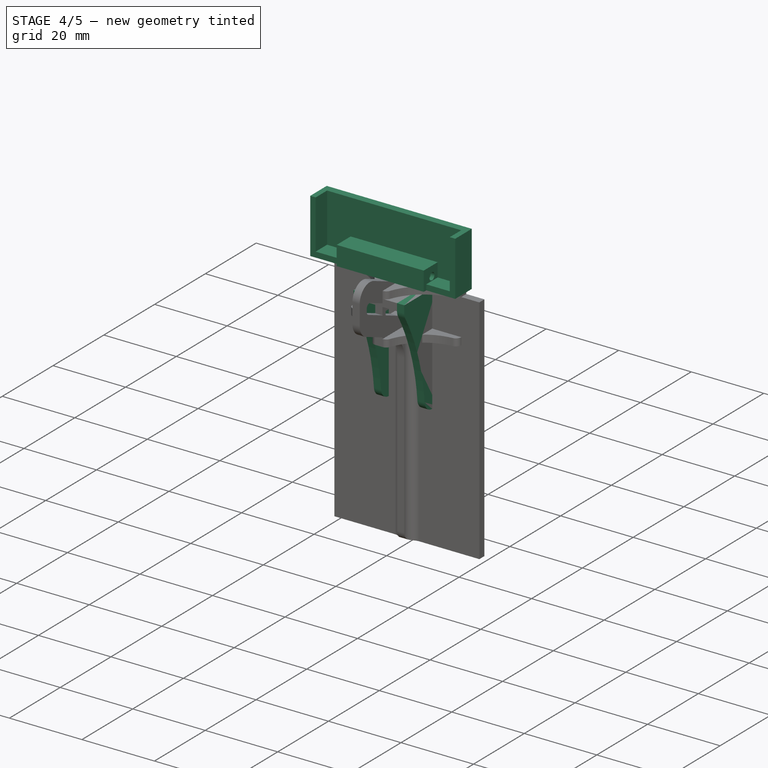
[diagram: stage 4 of 5 — iso view after this stage's code; geometry added in this stage tinted green]
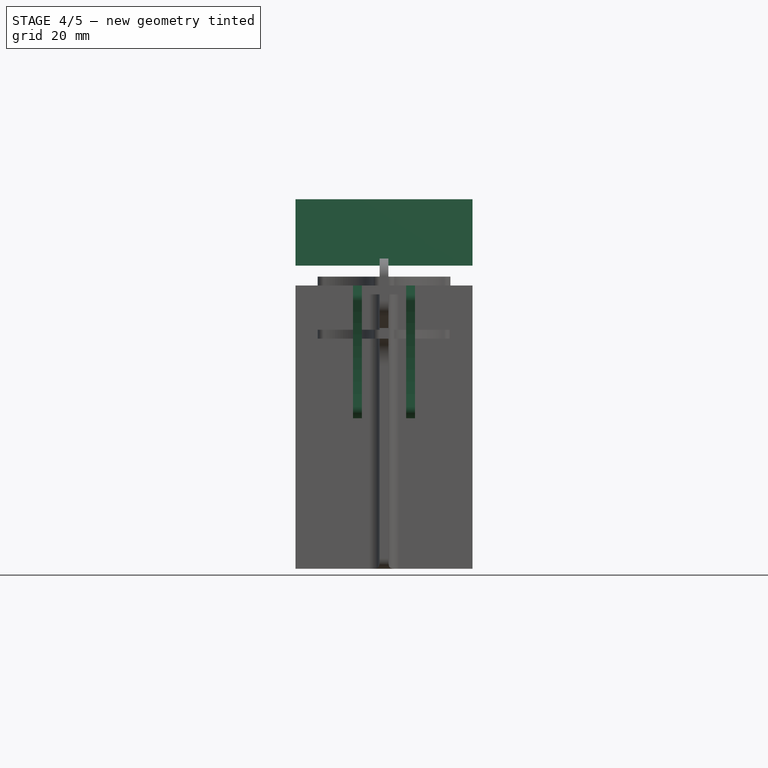
[diagram: stage 4 of 5 — front view after this stage's code; geometry added in this stage tinted green]
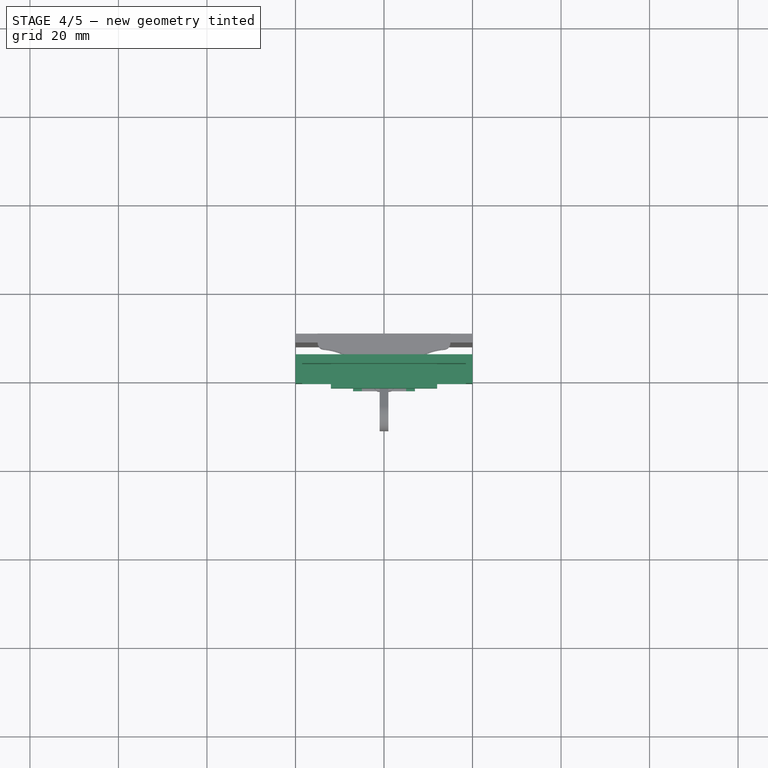
[diagram: stage 4 of 5 — top view after this stage's code; geometry added in this stage tinted green]
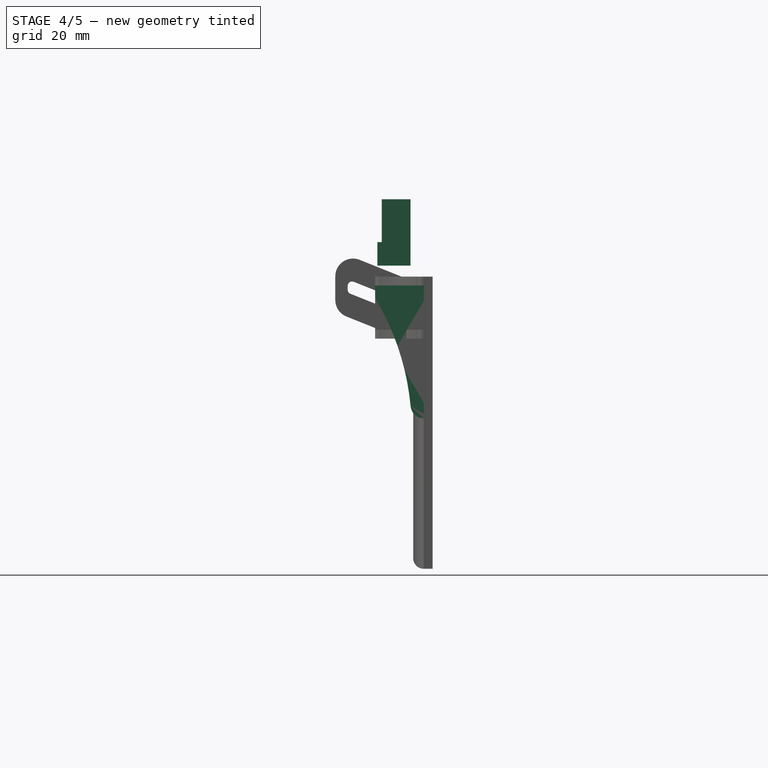
[diagram: stage 4 of 5 — right view after this stage's code; geometry added in this stage tinted green]
FEATURE [PartDesign::Body] Body  label="model"
  AutoGroupSolids = false
  ClaimAllChildren = false
  ExportMode = 0
  Group = -> [Sketch,Pad,Sketch001,Pad001,Sketch002,Pad002]
  InvalidShape = false
  Origin = -> Origin
  Tip = -> Pad002
  TreeRank = 10
  ValidateShape = false
  _ExportChildren = -> [Pad,Pad001,Pad002]
  _GroupVersion = 1
FEATURE [Part::SubShapeBinder] Import001  label="Import001(Pad002)"
  BindCopyOnChange = 0
  BindMode = 0
  ClaimChildren = false
  Context = -> Body001 [Import001.]
  EdgeTolerance = 1e-06
  FillStyle = 0
  Fuse = false
  InvalidShape = false
  MakeFace = false
  MergeEdges = true
  OffsetFill = false
  OffsetIntersection = false
  OffsetJoinType = 0
  OffsetOpenResult = false
  Outline = false
  PartialLoad = false
  Relative = true
  SplitEdges = false
  Support = -> [Body[Pad002.]]
  TightBound = false
  TreeRank = 28
  ValidateShape = false
  _Version = 8
FEATURE [Sketcher::SketchObject] Sketch003
  ArcFitTolerance = 1e-06
  AttachmentSupport = -> [Import001]
  ExternalBSplineMaxDegree = 5
  ExternalBSplineTolerance = 0.0001
  ExternalGeometry = -> [Import001]
  FullyConstrained = true
  InternalTolerance = 1e-06
  InvalidShape = false
  MakeInternals = false
  MapMode = 5
  Placement = pos=(0,-15,0) rot=(1,0,0;1.5708rad)
  Support = -> [Import001]
  TreeRank = 29
  ValidateShape = false
  sketch-geometry (4):
    g0: LineSegment StartX=-20 StartY=4.5 StartZ=0 EndX=20 EndY=4.5 EndZ=0
    g1: LineSegment StartX=20 StartY=4.5 StartZ=0 EndX=20 EndY=19.5 EndZ=0
    g2: LineSegment StartX=20 StartY=19.5 StartZ=0 EndX=-20 EndY=19.5 EndZ=0
    g3: LineSegment StartX=-20 StartY=19.5 StartZ=0 EndX=-20 EndY=4.5 EndZ=0
  constraints (11):
    c: Coincident(g0,g1)
    c: Coincident(g1,g2)
    c: Coincident(g2,g3)
    c: Coincident(g3,g0)
    c: Horizontal(g0)
    c: Vertical(g1)
    c: Vertical(g3)
    c: DistanceX(g2,g2) = 40
    c: Symmetric(g2,g1,g-2)
    c: DistanceY(g1,g1) = 15
    c: DistanceY(g0,g-3) = 0.5
FEATURE [PartDesign::Pad] Pad003
  AddSubType = 0
  AlongSketchNormal = false
  AutoTaperInnerAngle = true
  CheckUpToFaceLimits = true
  ClaimChildren = false
  Direction = (0,-1,2e-16)
  Fit = 0
  FitJoin = 0
  InnerFit = 0
  InnerFitJoin = 0
  InvalidShape = false
  Length = 2
  Length2 = 10
  Linearize = true
  NewSolid = false
  Profile = -> Sketch003
  ReferenceAxis = -> Sketch003 [N_Axis]
  Suppress = false
  TaperInnerAngle = 0
  TaperInnerAngleRev = 0
  TreeRank = 30
  Type = 0
  ValidateShape = true
  _ProfileBasedVersion = 1
FEATURE [Sketcher::SketchObject] Sketch004
  ArcFitTolerance = 1e-06
  AttachmentSupport = -> [Pad003]
  ExternalBSplineMaxDegree = 5
  ExternalBSplineTolerance = 0.0001
  ExternalGeometry = -> [Pad003,Import001]
  FullyConstrained = true
  InternalTolerance = 1e-06
  InvalidShape = false
  MakeInternals = false
  MapMode = 5
  Placement = pos=(0,-17,0) rot=(1,0,0;1.5708rad)
  Support = -> [Pad003]
  TreeRank = 31
  ValidateShape = false
  sketch-geometry (8):
    g0: LineSegment StartX=-12 StartY=4.5 StartZ=0 EndX=-11 EndY=4.5 EndZ=0
    g1: LineSegment StartX=-11 StartY=4.5 StartZ=0 EndX=-11 EndY=8.8 EndZ=0
    g2: LineSegment StartX=-11 StartY=8.8 StartZ=0 EndX=11 EndY=8.8 EndZ=0
    g3: LineSegment StartX=11 StartY=8.8 StartZ=0 EndX=11 EndY=4.5 EndZ=0
    g4: LineSegment StartX=11 StartY=4.5 StartZ=0 EndX=12 EndY=4.5 EndZ=0
    g5: LineSegment StartX=12 StartY=4.5 StartZ=0 EndX=12 EndY=9.8 EndZ=0
    g6: LineSegment StartX=12 StartY=9.8 StartZ=0 EndX=-12 EndY=9.8 EndZ=0
    g7: LineSegment StartX=-12 StartY=9.8 StartZ=0 EndX=-12 EndY=4.5 EndZ=0
  constraints (24):
    c: PointOnObject(g0,g-3)
    c: PointOnObject(g0,g-3)
    c: Coincident(g1,g0)
    c: Vertical(g1)
    c: Coincident(g2,g1)
    c: Horizontal(g2)
    c: Coincident(g3,g2)
    c: PointOnObject(g3,g-3)
    c: Vertical(g3)
    c: Coincident(g4,g3)
    c: PointOnObject(g4,g-3)
    c: Coincident(g5,g4)
    c: Vertical(g5)
    c: Coincident(g6,g5)
    c: Horizontal(g6)
    c: Coincident(g7,g6)
    c: Coincident(g7,g0)
    c: Vertical(g7)
    c: Equal(g4,g0)
    c: DistanceX(g4,g4) = 1
    c: DistanceX(g-4,g2) = 4
    c: DistanceX(g1,g-4) = 4
    c: DistanceY(g-4,g1) = 0.5
    c: DistanceY(g2,g5) = 1
FEATURE [PartDesign::Pad] Pad004
  AddSubType = 0
  AlongSketchNormal = false
  AutoTaperInnerAngle = true
  BaseFeature = -> Pad003
  CheckUpToFaceLimits = true
  ClaimChildren = false
  Direction = (0,-1,2e-16)
  Fit = 0
  FitJoin = 0
  InnerFit = 0
  InnerFitJoin = 0
  InvalidShape = false
  Length = 4.5
  Length2 = 10
  Linearize = true
  NewSolid = false
  Profile = -> Sketch004
  ReferenceAxis = -> Sketch004 [N_Axis]
  Suppress = false
  TaperInnerAngle = 0
  TaperInnerAngleRev = 0
  TreeRank = 32
  Type = 0
  ValidateShape = true
  _ProfileBasedVersion = 1
FEATURE [Sketcher::SketchObject] Sketch005
  ArcFitTolerance = 1e-06
  AttachmentSupport = -> [Pad004]
  ExternalBSplineMaxDegree = 5
  ExternalBSplineTolerance = 0.0001
  ExternalGeometry = -> [Pad004]
  FullyConstrained = true
  InternalTolerance = 1e-06
  InvalidShape = false
  MakeInternals = false
  MapMode = 5
  Placement = pos=(0,-21.5,1.49e-14) rot=(1,0,0;1.5708rad)
  Support = -> [Pad004]
  TreeRank = 33
  ValidateShape = false
  sketch-geometry (4):
    g0: LineSegment StartX=-12 StartY=4.5 StartZ=0 EndX=12 EndY=4.5 EndZ=0
    g1: LineSegment StartX=12 StartY=4.5 StartZ=0 EndX=12 EndY=9.8 EndZ=0
    g2: LineSegment StartX=12 StartY=9.8 StartZ=0 EndX=-12 EndY=9.8 EndZ=0
    g3: LineSegment StartX=-12 StartY=9.8 StartZ=0 EndX=-12 EndY=4.5 EndZ=0
  constraints (10):
    c: Coincident(g0,g1)
    c: Coincident(g1,g2)
    c: Coincident(g2,g3)
    c: Coincident(g3,g0)
    c: Horizontal(g0)
    c: Horizontal(g2)
    c: Vertical(g1)
    c: Vertical(g3)
    c: Coincident(g0,g-3)
    c: Coincident(g1,g-4)
FEATURE [PartDesign::Pad] Pad005
  AddSubType = 0
  AlongSketchNormal = false
  AutoTaperInnerAngle = true
  BaseFeature = -> Pad004
  CheckUpToFaceLimits = true
  ClaimChildren = false
  Direction = (0,-1,7e-16)
  Fit = 0
  FitJoin = 0
  InnerFit = 0
  InnerFitJoin = 0
  InvalidShape = false
  Length = 1
  Length2 = 10
  Linearize = true
  NewSolid = false
  Profile = -> Sketch005
  ReferenceAxis = -> Sketch005 [N_Axis]
  Suppress = false
  TaperInnerAngle = 0
  TaperInnerAngleRev = 0
  TreeRank = 34
  Type = 0
  ValidateShape = true
  _ProfileBasedVersion = 1
FEATURE [Sketcher::SketchObject] Sketch006
  ArcFitTolerance = 1e-06
  AttachmentSupport = -> [Pad005]
  ExternalBSplineMaxDegree = 5
  ExternalBSplineTolerance = 0.0001
  ExternalGeometry = -> [Pad005]
  FullyConstrained = true
  InternalTolerance = 1e-06
  InvalidShape = false
  MakeInternals = false
  MapMode = 5
  Placement = pos=(-12,0,0) rot=(0.57735,-0.57735,-0.57735;2.0944rad)
  Support = -> [Pad005]
  TreeRank = 35
  ValidateShape = false
  sketch-geometry (1):
    g0: Circle CenterX=19.25 CenterY=7.15 CenterZ=0 NormalX=0 NormalY=0 NormalZ=1 AngleXU=0 Radius=1
  constraints (2):
    c: Symmetric(g-4,g-3,g0)
    c: Diameter(g0) = 2
FEATURE [PartDesign::Pocket] Pocket
  AddSubType = 1
  AlongSketchNormal = false
  AutoTaperInnerAngle = true
  BaseFeature = -> Pad005
  CheckUpToFaceLimits = true
  ClaimChildren = false
  Direction = (1,0,0)
  Fit = 0
  FitJoin = 0
  InnerFit = 0
  InnerFitJoin = 0
  InvalidShape = false
  Length = 34
  Length2 = 10
  Linearize = true
  NewSolid = false
  Profile = -> Sketch006
  ReferenceAxis = -> Sketch006 [N_Axis]
  Suppress = false
  TaperInnerAngle = 0
  TaperInnerAngleRev = 0
  TreeRank = 36
  Type = 0
  ValidateShape = true
  _ProfileBasedVersion = 1
  _Version = 1
FEATURE [Sketcher::SketchObject] Sketch007
  ArcFitTolerance = 1e-06
  AttachmentSupport = -> [Pocket]
  ExternalBSplineMaxDegree = 5
  ExternalBSplineTolerance = 0.0001
  ExternalGeometry = -> [Pocket]
  FullyConstrained = true
  InternalTolerance = 1e-06
  InvalidShape = false
  MakeInternals = false
  MapMode = 5
  Placement = pos=(0,-17,0) rot=(1,0,0;1.5708rad)
  Support = -> [Pocket]
  TreeRank = 37
  ValidateShape = false
  sketch-geometry (12):
    g0: LineSegment StartX=-12 StartY=4.5 StartZ=0 EndX=-20 EndY=4.5 EndZ=0
    g1: LineSegment StartX=-20 StartY=4.5 StartZ=0 EndX=-20 EndY=19.5 EndZ=0
    g2: LineSegment StartX=-20 StartY=19.5 StartZ=0 EndX=-18.5 EndY=19.5 EndZ=0
    g3: LineSegment StartX=-18.5 StartY=19.5 StartZ=0 EndX=-18.5 EndY=6 EndZ=0
    g4: LineSegment StartX=-18.5 StartY=6 StartZ=0 EndX=-12 EndY=6 EndZ=0
    g5: LineSegment StartX=-12 StartY=6 StartZ=0 EndX=-12 EndY=4.5 EndZ=0
    g6: LineSegment StartX=12 StartY=4.5 StartZ=0 EndX=20 EndY=4.5 EndZ=0
    g7: LineSegment StartX=20 StartY=4.5 StartZ=0 EndX=20 EndY=19.5 EndZ=0
    g8: LineSegment StartX=20 StartY=19.5 StartZ=0 EndX=18.5 EndY=19.5 EndZ=0
    g9: LineSegment StartX=18.5 StartY=19.5 StartZ=0 EndX=18.5 EndY=6 EndZ=0
    g10: LineSegment StartX=18.5 StartY=6 StartZ=0 EndX=12 EndY=6 EndZ=0
    g11: LineSegment StartX=12 StartY=6 StartZ=0 EndX=12 EndY=4.5 EndZ=0
  constraints (30):
    c: Coincident(g0,g-4)
    c: Coincident(g0,g-4)
    c: Coincident(g1,g0)
    c: Coincident(g1,g-5)
    c: Coincident(g2,g1)
    c: PointOnObject(g2,g-5)
    c: Vertical(g3)
    c: Coincident(g4,g3)
    c: Horizontal(g4)
    c: Coincident(g5,g4)
    c: Coincident(g5,g0)
    c: Vertical(g5)
    c: Coincident(g6,g-3)
    c: Coincident(g6,g-3)
    c: Coincident(g7,g6)
    c: Coincident(g7,g-5)
    c: Coincident(g8,g7)
    c: PointOnObject(g8,g-5)
    c: Coincident(g9,g8)
    c: Vertical(g9)
    c: Coincident(g10,g9)
    c: Horizontal(g10)
    c: Coincident(g11,g10)
    c: Coincident(g11,g6)
    c: Vertical(g11)
    c: Equal(g5,g11)
    c: Coincident(g2,g3)
    c: Equal(g2,g8)
    c: Equal(g8,g11)
    c: DistanceX(g8,g8) = 1.5
FEATURE [PartDesign::Pad] Pad006
  AddSubType = 0
  AlongSketchNormal = false
  AutoTaperInnerAngle = true
  BaseFeature = -> Pocket
  CheckUpToFaceLimits = true
  ClaimChildren = false
  Direction = (0,-1,2e-16)
  Fit = 0
  FitJoin = 0
  InnerFit = 0
  InnerFitJoin = 0
  InvalidShape = false
  Length = 4.5
  Length2 = 10
  Linearize = true
  NewSolid = false
  Profile = -> Sketch007
  ReferenceAxis = -> Sketch007 [N_Axis]
  Suppress = false
  TaperInnerAngle = 0
  TaperInnerAngleRev = 0
  TreeRank = 38
  Type = 0
  ValidateShape = true
  _ProfileBasedVersion = 1
FEATURE [Sketcher::SketchObject] Sketch012
  ArcFitTolerance = 1e-06
  AttachmentSupport = -> [Pocket001]
  ExternalBSplineMaxDegree = 5
  ExternalBSplineTolerance = 0.0001
  ExternalGeometry = -> [Pocket001,Import002]
  FullyConstrained = true
  InternalTolerance = 1e-06
  InvalidShape = false
  MakeInternals = false
  MapMode = 5
  Placement = pos=(-5,0,0) rot=(0.57735,-0.57735,-0.57735;2.0944rad)
  Support = -> [Pocket001]
  TreeRank = 60
  ValidateShape = false
  sketch-geometry (9):
    g0: LineSegment [constr] StartX=12 StartY=-30 StartZ=0 EndX=12 EndY=-2 EndZ=0
    g1: LineSegment [constr] StartX=12 StartY=-2 StartZ=0 EndX=23 EndY=-2 EndZ=0
    g2: ArcOfCircle CenterX=20 CenterY=-2 CenterZ=0 NormalX=0 NormalY=0 NormalZ=1 AngleXU=0 Radius=3 StartAngle=5.75663 EndAngle=6.28319
    g3: ArcOfCircle CenterX=12 CenterY=-27 CenterZ=0 NormalX=0 NormalY=0 NormalZ=1 AngleXU=0 Radius=3 StartAngle=4.71239 EndAngle=6.19033
    g4: ArcOfCircle CenterX=72.7372 CenterY=-32.6559 CenterZ=0 NormalX=0 NormalY=0 NormalZ=1 AngleXU=0 Radius=58 StartAngle=2.61504 EndAngle=3.04874
    g5: LineSegment StartX=23 StartY=-2 StartZ=0 EndX=23 EndY=0 EndZ=0
    g6: LineSegment StartX=23 StartY=0 StartZ=0 EndX=10 EndY=0 EndZ=0
    g7: LineSegment StartX=10 StartY=0 StartZ=0 EndX=10 EndY=-30 EndZ=0
    g8: LineSegment StartX=10 StartY=-30 StartZ=0 EndX=12 EndY=-30 EndZ=0
  constraints (22):
    c: Coincident(g0,g-4)
    c: Coincident(g0,g-4)
    c: Coincident(g1,g0)
    c: Coincident(g1,g-3)
    c: PointOnObject(g2,g1)
    c: Coincident(g2,g1)
    c: PointOnObject(g3,g0)
    c: Coincident(g3,g0)
    c: Equal(g2,g3)
    c: Radius(g2) = 3
    c: Tangent(g4,g3) = 1.5708
    c: Tangent(g4,g2) = 1.5708
    c: Coincident(g5,g2)
    c: Coincident(g5,g-5)
    c: Coincident(g6,g5)
    c: Coincident(g6,g-6)
    c: Coincident(g7,g6)
    c: PointOnObject(g7,g-6)
    c: Coincident(g8,g7)
    c: Coincident(g8,g3)
    c: Horizontal(g8)
    c: Radius(g4) = 58
FEATURE [PartDesign::Pad] Pad010
  AddSubType = 0
  AlongSketchNormal = false
  AutoTaperInnerAngle = true
  BaseFeature = -> Pocket001
  CheckUpToFaceLimits = true
  ClaimChildren = false
  Direction = (-1,0,0)
  Fit = 0
  FitJoin = 0
  InnerFit = 0
  InnerFitJoin = 0
  InvalidShape = false
  Length = 2
  Length2 = 10
  Linearize = true
  NewSolid = false
  Profile = -> Sketch012
  ReferenceAxis = -> Sketch012 [N_Axis]
  Suppress = false
  TaperInnerAngle = 0
  TaperInnerAngleRev = 0
  TreeRank = 61
  Type = 0
  ValidateShape = true
  _ProfileBasedVersion = 1
FEATURE [PartDesign::Mirrored] Mirrored
  AddSubType = 0
  BaseFeature = -> Pad010
  CopyShape = false
  InvalidShape = false
  MirrorPlane = -> YZ_Plane002
  NewSolid = false
  OriginalSubs = -> [Pad010]
  Originals = -> [Pad010]
  ParallelTransform = true
  SubTransform = true
  Suppress = false
  TreeRank = 62
  ValidateShape = true
  _Version = 3
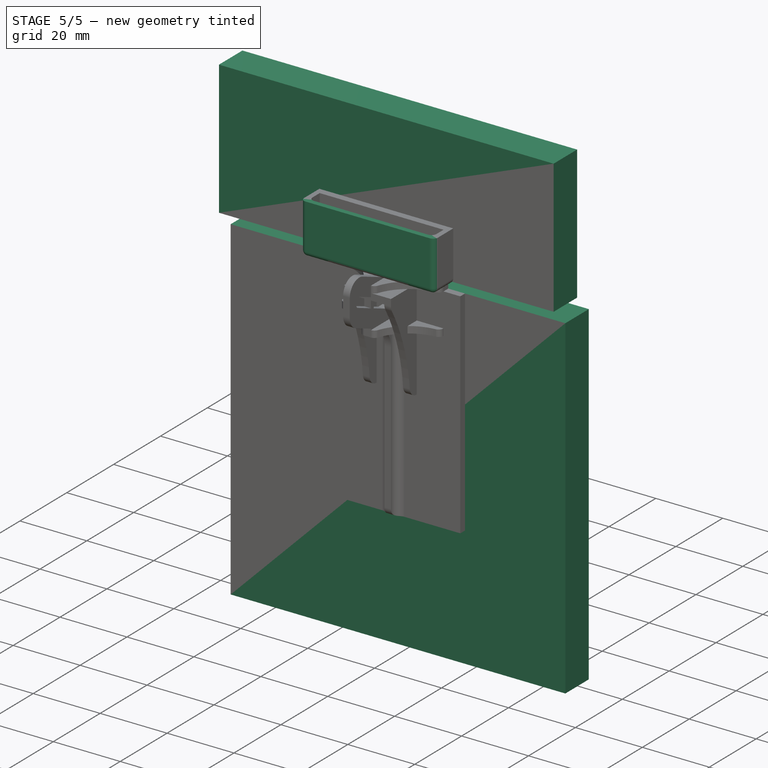
[diagram: stage 5 of 5 — iso view after this stage's code; geometry added in this stage tinted green]
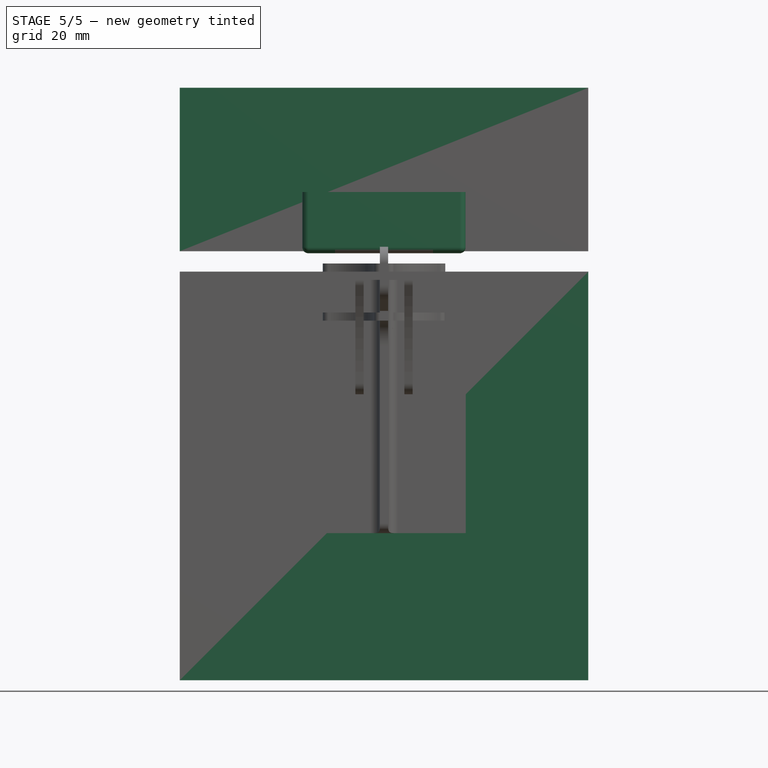
[diagram: stage 5 of 5 — front view after this stage's code; geometry added in this stage tinted green]
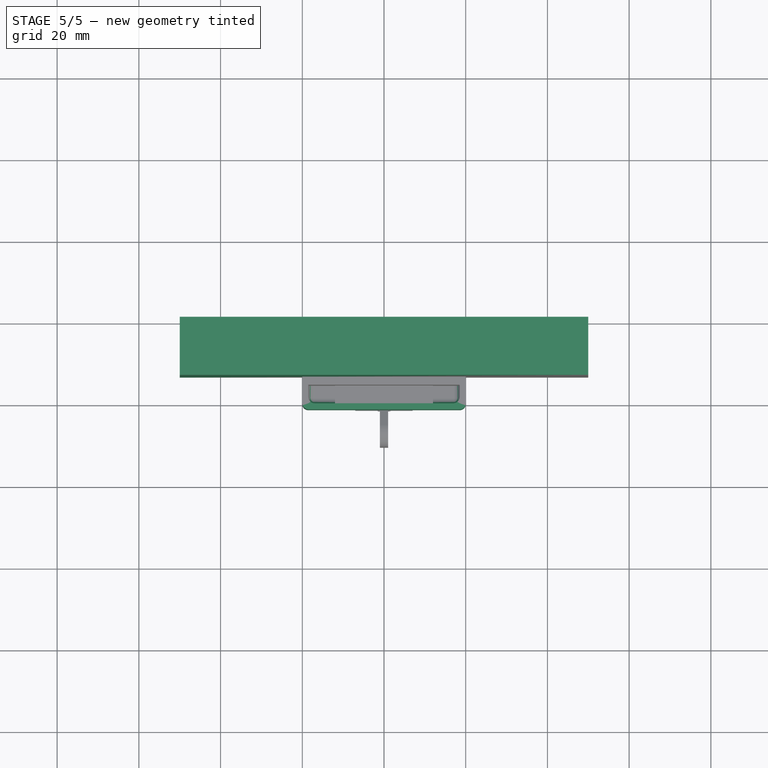
[diagram: stage 5 of 5 — top view after this stage's code; geometry added in this stage tinted green]
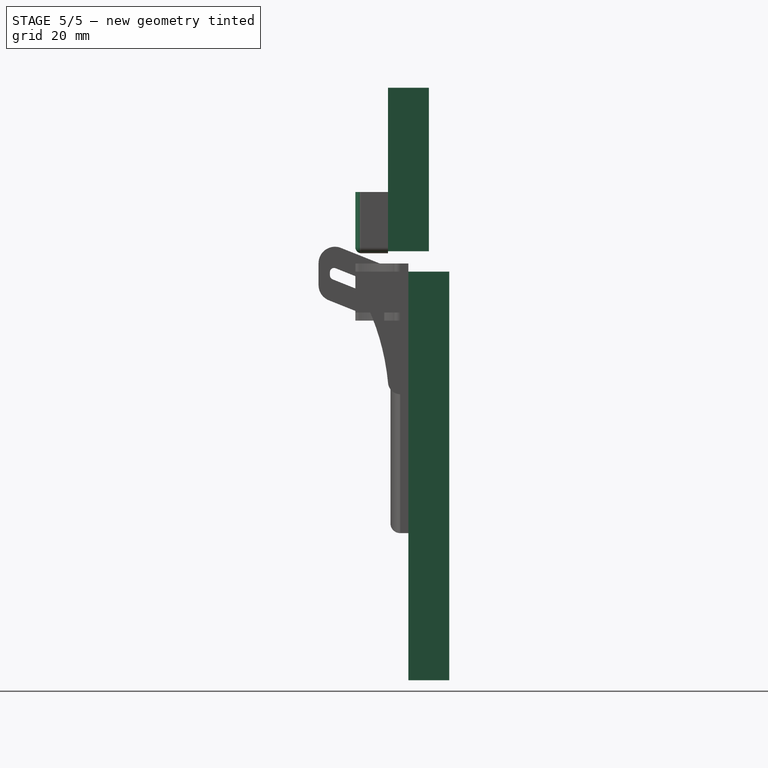
[diagram: stage 5 of 5 — right view after this stage's code; geometry added in this stage tinted green]
FEATURE [Sketcher::SketchObject] Sketch
  ArcFitTolerance = 1e-06
  AttachmentSupport = -> [XZ_Plane]
  ExternalBSplineMaxDegree = 5
  ExternalBSplineTolerance = 0.0001
  FullyConstrained = true
  InternalTolerance = 1e-06
  InvalidShape = false
  MakeInternals = false
  MapMode = 5
  Placement = pos=(0,0,0) rot=(1,0,0;1.5708rad)
  Support = -> [XZ_Plane]
  TreeRank = 11
  ValidateShape = false
  sketch-geometry (4):
    g0: LineSegment StartX=-50 StartY=0 StartZ=0 EndX=50 EndY=0 EndZ=0
    g1: LineSegment StartX=50 StartY=0 StartZ=0 EndX=50 EndY=-100 EndZ=0
    g2: LineSegment StartX=50 StartY=-100 StartZ=0 EndX=-50 EndY=-100 EndZ=0
    g3: LineSegment StartX=-50 StartY=-100 StartZ=0 EndX=-50 EndY=0 EndZ=0
  constraints (11):
    c: Coincident(g0,g1)
    c: Coincident(g1,g2)
    c: Coincident(g2,g3)
    c: Coincident(g3,g0)
    c: Horizontal(g0)
    c: Vertical(g1)
    c: Vertical(g3)
    c: PointOnObject(g0,g-1)
    c: Equal(g0,g1)
    c: DistanceX(g0,g0) = 100
    c: Symmetric(g2,g1,g-2)
FEATURE [PartDesign::Pad] Pad
  AddSubType = 0
  AlongSketchNormal = false
  AutoTaperInnerAngle = true
  CheckUpToFaceLimits = true
  ClaimChildren = false
  Direction = (0,-1,2e-16)
  Fit = 0
  FitJoin = 0
  InnerFit = 0
  InnerFitJoin = 0
  InvalidShape = false
  Length = 10
  Length2 = 10
  Linearize = true
  NewSolid = false
  Profile = -> Sketch
  ReferenceAxis = -> Sketch [N_Axis]
  Suppress = false
  TaperInnerAngle = 0
  TaperInnerAngleRev = 0
  TreeRank = 12
  Type = 0
  ValidateShape = true
  _ProfileBasedVersion = 1
FEATURE [Sketcher::SketchObject] Sketch001
  ArcFitTolerance = 1e-06
  AttachmentOffset = pos=(0,0,15) rot=(0,0,1;0rad)
  AttachmentSupport = -> [XZ_Plane]
  ExternalBSplineMaxDegree = 5
  ExternalBSplineTolerance = 0.0001
  FullyConstrained = true
  InternalTolerance = 1e-06
  InvalidShape = false
  MakeInternals = false
  MapMode = 5
  Placement = pos=(0,-15,3.3e-15) rot=(1,0,0;1.5708rad)
  Support = -> [XZ_Plane]
  TreeRank = 13
  ValidateShape = false
  sketch-geometry (4):
    g0: LineSegment StartX=-50 StartY=45 StartZ=0 EndX=50 EndY=45 EndZ=0
    g1: LineSegment StartX=50 StartY=45 StartZ=0 EndX=50 EndY=5 EndZ=0
    g2: LineSegment StartX=50 StartY=5 StartZ=0 EndX=-50 EndY=5 EndZ=0
    g3: LineSegment StartX=-50 StartY=5 StartZ=0 EndX=-50 EndY=45 EndZ=0
  constraints (11):
    c: Coincident(g0,g1)
    c: Coincident(g1,g2)
    c: Coincident(g2,g3)
    c: Coincident(g3,g0)
    c: Horizontal(g2)
    c: Vertical(g1)
    c: Vertical(g3)
    c: DistanceX(g0,g0) = 100
    c: DistanceY(g-1,g1) = 5
    c: DistanceY(g1,g1) = 40
    c: Symmetric(g0,g0,g-2)
FEATURE [PartDesign::Pad] Pad001
  AddSubType = 0
  AlongSketchNormal = false
  AutoTaperInnerAngle = true
  BaseFeature = -> Pad
  CheckUpToFaceLimits = true
  ClaimChildren = false
  Direction = (0,-1,2e-16)
  Fit = 0
  FitJoin = 0
  InnerFit = 0
  InnerFitJoin = 0
  InvalidShape = false
  Length = 10
  Length2 = 10
  Linearize = true
  NewSolid = false
  Profile = -> Sketch001
  ReferenceAxis = -> Sketch001 [N_Axis]
  Reversed = true
  Suppress = false
  TaperInnerAngle = 0
  TaperInnerAngleRev = 0
  TreeRank = 14
  Type = 0
  ValidateShape = true
  _ProfileBasedVersion = 1
FEATURE [Part::SubShapeBinder] Import  label="Import(Pad001)"
  BindCopyOnChange = 0
  BindMode = 0
  ClaimChildren = false
  Context = -> Body001 [Import.]
  EdgeTolerance = 1e-06
  FillStyle = 0
  Fuse = false
  InvalidShape = false
  MakeFace = false
  MergeEdges = true
  OffsetFill = false
  OffsetIntersection = false
  OffsetJoinType = 0
  OffsetOpenResult = false
  Outline = false
  PartialLoad = false
  Relative = true
  SplitEdges = false
  Support = -> [Body[Pad001.]]
  TightBound = false
  TreeRank = 25
  ValidateShape = false
  _Version = 8
FEATURE [Sketcher::SketchObject] Sketch002
  ArcFitTolerance = 1e-06
  AttachmentOffset = pos=(0,0,2.5) rot=(0,0,1;0rad)
  AttachmentSupport = -> [Pad001]
  ExternalBSplineMaxDegree = 5
  ExternalBSplineTolerance = 0.0001
  ExternalGeometry = -> [Pad001]
  FullyConstrained = true
  InternalTolerance = 1e-06
  InvalidShape = false
  MakeInternals = false
  MapMode = 5
  Placement = pos=(0,-17.5,6e-16) rot=(1,0,0;1.5708rad)
  Support = -> [Pad001]
  TreeRank = 26
  ValidateShape = false
  sketch-geometry (4):
    g0: LineSegment StartX=-7 StartY=5 StartZ=0 EndX=7 EndY=5 EndZ=0
    g1: LineSegment StartX=7 StartY=5 StartZ=0 EndX=7 EndY=8.3 EndZ=0
    g2: LineSegment StartX=7 StartY=8.3 StartZ=0 EndX=-7 EndY=8.3 EndZ=0
    g3: LineSegment StartX=-7 StartY=8.3 StartZ=0 EndX=-7 EndY=5 EndZ=0
  constraints (11):
    c: Coincident(g0,g1)
    c: Coincident(g1,g2)
    c: Coincident(g2,g3)
    c: Coincident(g3,g0)
    c: Horizontal(g0)
    c: Vertical(g1)
    c: Vertical(g3)
    c: PointOnObject(g0,g-3)
    c: DistanceX(g2,g2) = 14
    c: DistanceY(g1,g1) = 3.3
    c: Symmetric(g2,g1,g-2)
FEATURE [PartDesign::Pad] Pad002
  AddSubType = 0
  AlongSketchNormal = false
  AutoTaperInnerAngle = true
  BaseFeature = -> Pad001
  CheckUpToFaceLimits = true
  ClaimChildren = false
  Direction = (0,-1,2e-16)
  Fit = 0
  FitJoin = 0
  InnerFit = 0
  InnerFitJoin = 0
  InvalidShape = false
  Length = 3.3
  Length2 = 10
  Linearize = true
  NewSolid = false
  Profile = -> Sketch002
  ReferenceAxis = -> Sketch002 [N_Axis]
  Suppress = false
  TaperInnerAngle = 0
  TaperInnerAngleRev = 0
  TreeRank = 27
  Type = 0
  ValidateShape = true
  _ProfileBasedVersion = 1
FEATURE [Sketcher::SketchObject] Sketch008
  ArcFitTolerance = 1e-06
  AttachmentSupport = -> [Pad006]
  ExternalBSplineMaxDegree = 5
  ExternalBSplineTolerance = 0.0001
  ExternalGeometry = -> [Pad006]
  FullyConstrained = true
  InternalTolerance = 1e-06
  InvalidShape = false
  MakeInternals = false
  MapMode = 5
  Placement = pos=(0,-21.5,5.3e-15) rot=(1,0,0;1.5708rad)
  Support = -> [Pad006]
  TreeRank = 39
  ValidateShape = false
  sketch-geometry (4):
    g0: LineSegment StartX=-20 StartY=4.5 StartZ=0 EndX=20 EndY=4.5 EndZ=0
    g1: LineSegment StartX=20 StartY=4.5 StartZ=0 EndX=20 EndY=19.5 EndZ=0
    g2: LineSegment StartX=20 StartY=19.5 StartZ=0 EndX=-20 EndY=19.5 EndZ=0
    g3: LineSegment StartX=-20 StartY=19.5 StartZ=0 EndX=-20 EndY=4.5 EndZ=0
  constraints (10):
    c: Coincident(g0,g1)
    c: Coincident(g1,g2)
    c: Coincident(g2,g3)
    c: Coincident(g3,g0)
    c: Horizontal(g0)
    c: Horizontal(g2)
    c: Vertical(g1)
    c: Vertical(g3)
    c: Coincident(g0,g-3)
    c: Coincident(g1,g-4)
FEATURE [PartDesign::Pad] Pad007
  AddSubType = 0
  AlongSketchNormal = false
  AutoTaperInnerAngle = true
  BaseFeature = -> Pad006
  CheckUpToFaceLimits = true
  ClaimChildren = false
  Direction = (0,-1,2e-16)
  Fit = 0
  FitJoin = 0
  InnerFit = 0
  InnerFitJoin = 0
  InvalidShape = false
  Length = 1.5
  Length2 = 10
  Linearize = true
  NewSolid = false
  Profile = -> Sketch008
  ReferenceAxis = -> Sketch008 [N_Axis]
  Suppress = false
  TaperInnerAngle = 0
  TaperInnerAngleRev = 0
  TreeRank = 40
  Type = 0
  ValidateShape = true
  _ProfileBasedVersion = 1
FEATURE [PartDesign::Fillet] Fillet
  AddSubType = 0
  Base = -> Pad007 [Edge40,Edge41,Edge62,Edge64,Edge27,Edge17]
  BaseFeature = -> Pad007
  InvalidShape = false
  NewSolid = false
  Radius = 1.49
  SupportTransform = false
  Suppress = false
  TreeRank = 41
  UseAllEdges = false
  ValidateShape = true
FEATURE [PartDesign::Fillet] Fillet001
  AddSubType = 0
  Base = -> Fillet [Edge105,Edge106,Edge107,Edge91,Edge104,Edge92]
  BaseFeature = -> Fillet
  InvalidShape = false
  NewSolid = false
  Radius = 1.49
  SupportTransform = false
  Suppress = false
  TreeRank = 42
  UseAllEdges = false
  ValidateShape = true
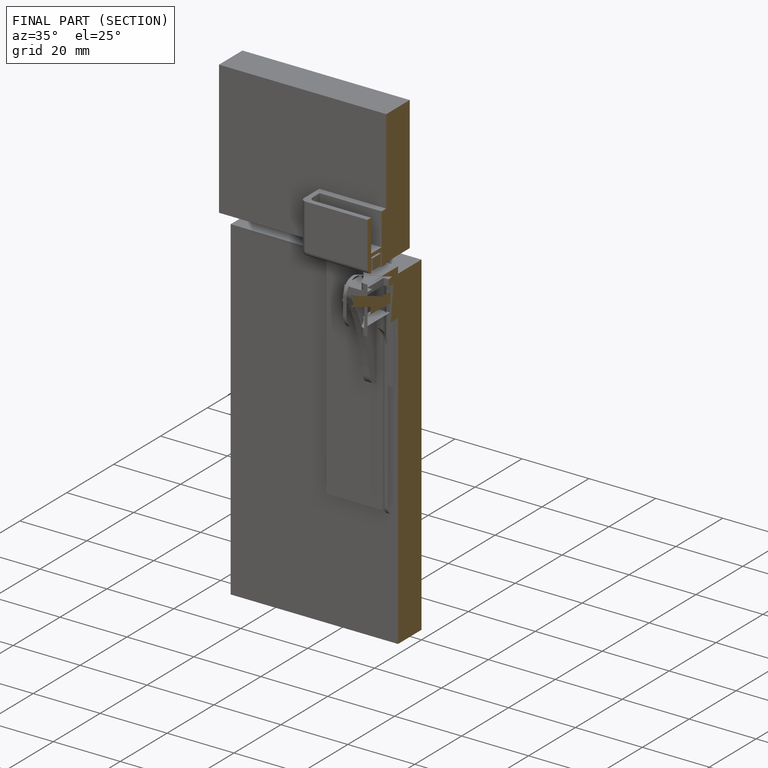
[diagram: finished part — half-section view (interior)]
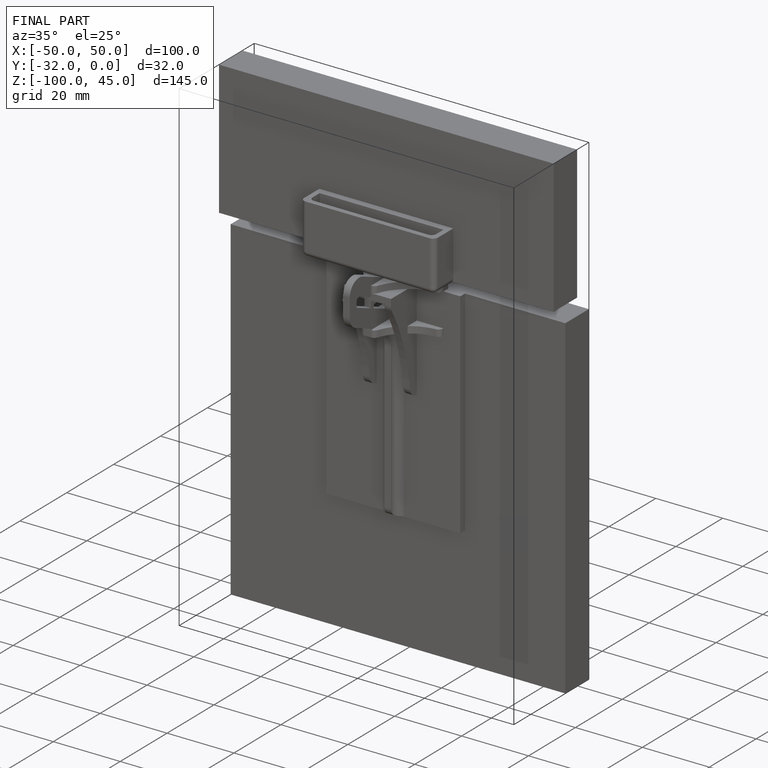
[diagram: finished part — iso view with bounding-box wireframe]
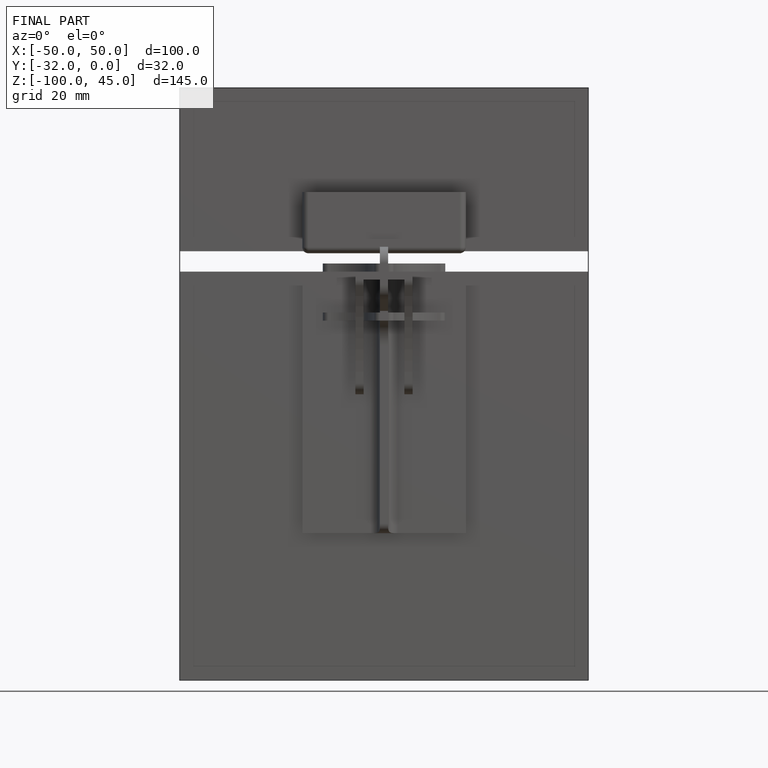
[diagram: finished part — front view with bounding-box wireframe]
